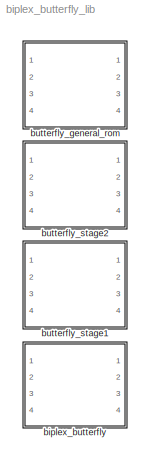
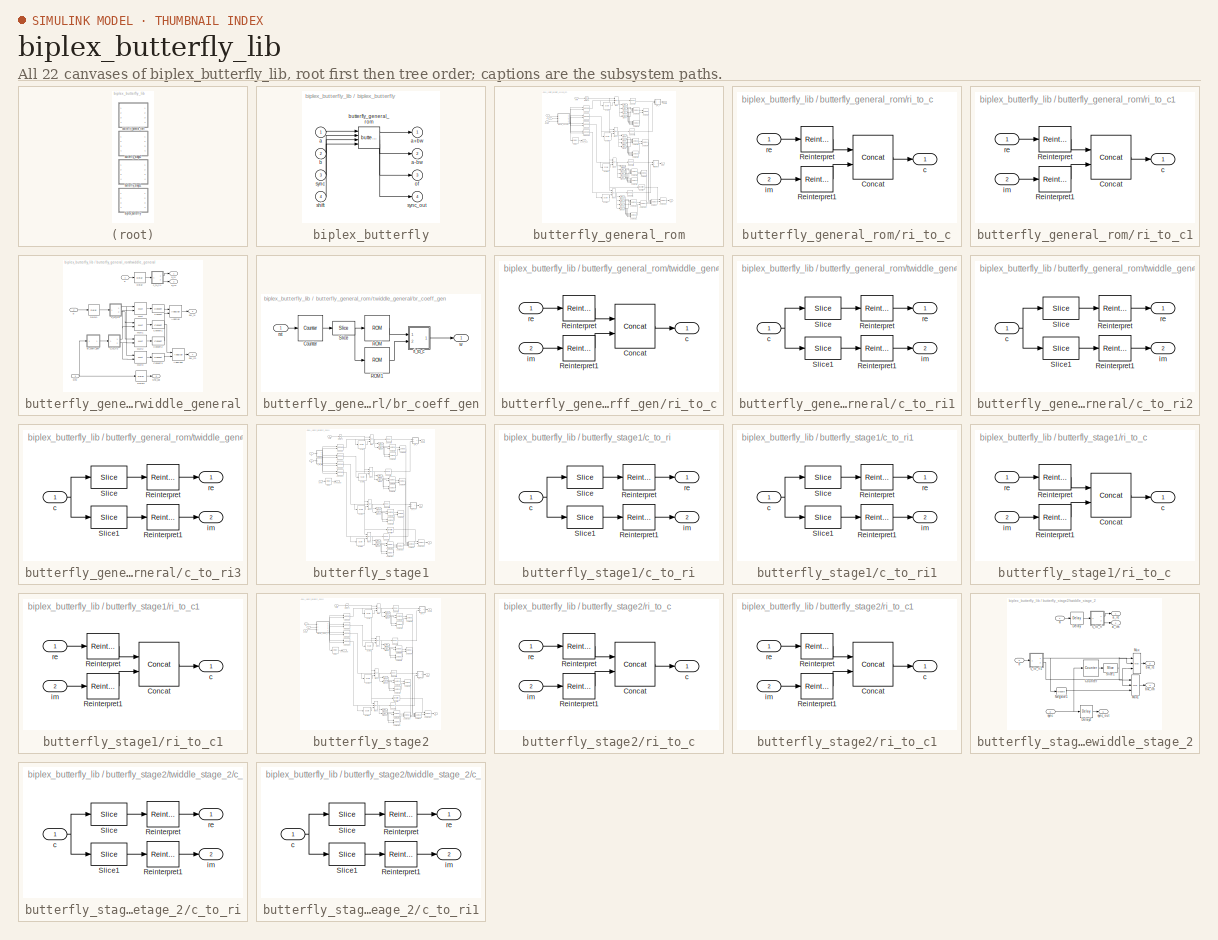
[diagram: thumbnail index - all 22 canvases of the model, root first then tree order]
MODEL biplex_butterfly_lib
KIND library
BLOCK [SubSystem] biplex_butterfly
  BlockChoice = butterfly_general_rom
  MemberBlocks = butterfly_general_rom,butterfly_stage1,butterfly_stage2
  MinAlgLoopOccurrences = off
  Ports = [4, 4]
  RTWSystemCode = Auto
  TemplateBlock = self
  TreatAsAtomicUnit = off
BLOCK [Inport] biplex_butterfly/a
  IconDisplay = Port number
  LatchInput = off
  Port = 1
BLOCK [Outport] biplex_butterfly/a+bw
  BusOutputAsStruct = off
  IconDisplay = Port number
BLOCK [Outport] biplex_butterfly/a-bw
  BusOutputAsStruct = off
  IconDisplay = Port number
  Port = 2
BLOCK [Inport] biplex_butterfly/b
  IconDisplay = Port number
  LatchInput = off
  Port = 2
BLOCK [Reference] biplex_butterfly/butterfly_general_rom  REF=biplex_butterfly_lib/butterfly_general_rom  (lib defined in mdl_6e92e3133389)
  BitWidth = 18
  Coeffs = 0:3
  FFTSize = 5
  Ports = [4, 4]
  ShowPortLabels = on
  SourceBlock = biplex_butterfly_lib/butterfly_general_rom
  SourceType = Unknown
  StepPeriod = 1
  add_latency = 2
  bram_latency = 2
  mult_latency = 3
  quantization = Truncate
  use_bram = off
BLOCK [Outport] biplex_butterfly/of
  BusOutputAsStruct = off
  IconDisplay = Port number
  Port = 3
BLOCK [Inport] biplex_butterfly/shift
  IconDisplay = Port number
  LatchInput = off
  Port = 4
BLOCK [Inport] biplex_butterfly/sync
  IconDisplay = Port number
  LatchInput = off
  Port = 3
BLOCK [Outport] biplex_butterfly/sync_out
  BusOutputAsStruct = off
  IconDisplay = Port number
  Port = 4
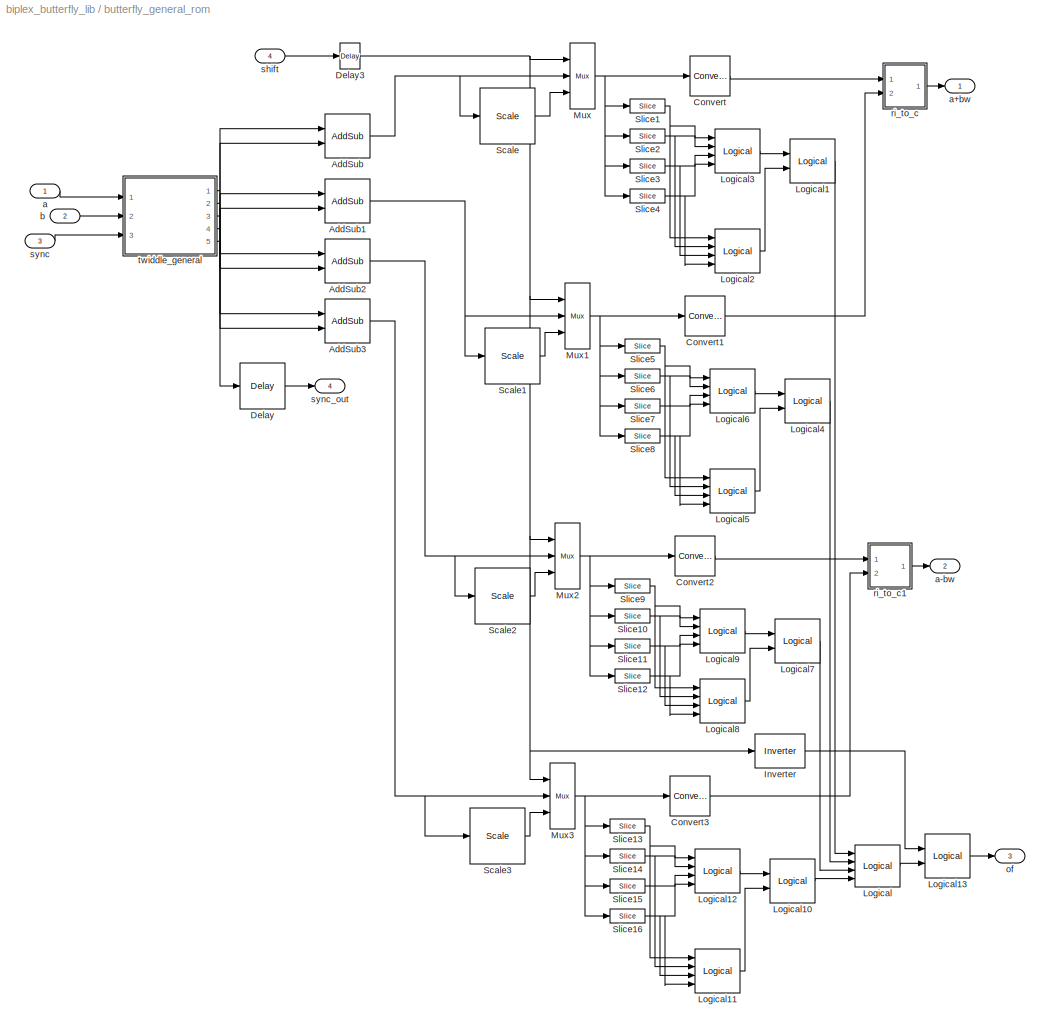
BLOCK [SubSystem] butterfly_general_rom
  MaskCallbackString = ||||||||
  MaskEnableString = on,on,on,on,on,on,on,on,on
  MaskIconFrame = on
  MaskIconOpaque = on
  MaskIconRotate = none
  MaskIconUnits = autoscale
  MaskInitialization = cursys = gcb;\ndisp(cursys);\n\n% Compute the complex, bit-reversed values of the twiddle factors\nbr_indices = bit_rev(Coeffs, FFTSize-1);\nbr_indices = -2*pi*1j*br_indices/2^FFTSize;\nActualCoeffs = exp(br_indices);\n\n% Propagate quantization behavior\nif ~strcmp(get_param([cursys,'/Convert'], 'quantization'), quantization),\n    set_param([cursys,'/Convert'], 'quantization', quantization);\n  ...<+209ch>
  MaskPromptString = Size of FFT: (2^?)|Coefficients: (0 to 2^(FFTSize-1)-1)|Coefficient Step Period: (2^?)|Output Bitwidth:|Mult Latency|Add Latency|BRAM Latency|Store Coefficients in BRAM|Quantization Behavior
  MaskSelfModifiable = on
  MaskStyleString = edit,edit,edit,edit,edit,edit,edit,checkbox,popup(Truncate|Round  (unbiased: +/- Inf)|Round  (unbiased: Even Values))
  MaskTabNameString = ,,,,,,,,
  MaskToolTipString = on,on,on,on,on,on,on,on,on
  MaskTunableValueString = on,on,on,on,on,on,on,on,on
  MaskValueString = 5|0:3|1|18|3|2|2|off|Truncate
  MaskVarAliasString = ,,,,,,,,
  MaskVariables = FFTSize=@1;Coeffs=@2;StepPeriod=@3;BitWidth=@4;mult_latency=@5;add_latency=@6;bram_latency=@7;use_bram=@8;quantization=&9;
  MaskVisibilityString = on,on,on,on,on,on,on,on,on
  MinAlgLoopOccurrences = off
  Ports = [4, 4]
  RTWSystemCode = Auto
  TreatAsAtomicUnit = off
BLOCK [Reference] butterfly_general_rom/AddSub  REF=xbsIndex_r3/AddSub
  Ports = [2, 1]
  SourceBlock = xbsIndex_r3/AddSub
  SourceType = Xilinx Adder/Subtractor
  arith_type = Unsigned
  bin_pt = 2
  dbl_ovrd = off
  en = off
  explicit_period = off
  gen_core = on
  latency = add_latency
  mode = Addition
  n_bits = 8
  overflow = Wrap
  period = 1
  pipeline = on
  precision = Full
  quantization = Truncate
  show_param = on
  use_carryin = off
  use_carryout = off
  use_core = on
  use_rpm = on
  xl_area = [0, 0, 0, 0, 0, 0, 0]
  xl_use_area = off
BLOCK [Reference] butterfly_general_rom/AddSub1  REF=xbsIndex_r3/AddSub
  Ports = [2, 1]
  SourceBlock = xbsIndex_r3/AddSub
  SourceType = Xilinx Adder/Subtractor
  arith_type = Unsigned
  bin_pt = 2
  dbl_ovrd = off
  en = off
  explicit_period = off
  gen_core = on
  latency = add_latency
  mode = Addition
  n_bits = 8
  overflow = Wrap
  period = 1
  pipeline = on
  precision = Full
  quantization = Truncate
  show_param = on
  use_carryin = off
  use_carryout = off
  use_core = on
  use_rpm = on
  xl_area = [0, 0, 0, 0, 0, 0, 0]
  xl_use_area = off
BLOCK [Reference] butterfly_general_rom/AddSub2  REF=xbsIndex_r3/AddSub
  Ports = [2, 1]
  SourceBlock = xbsIndex_r3/AddSub
  SourceType = Xilinx Adder/Subtractor
  arith_type = Unsigned
  bin_pt = 2
  dbl_ovrd = off
  en = off
  explicit_period = off
  gen_core = on
  latency = add_latency
  mode = Subtraction
  n_bits = 8
  overflow = Wrap
  period = 1
  pipeline = on
  precision = Full
  quantization = Truncate
  show_param = on
  use_carryin = off
  use_carryout = off
  use_core = on
  use_rpm = on
  xl_area = [0, 0, 0, 0, 0, 0, 0]
  xl_use_area = off
BLOCK [Reference] butterfly_general_rom/AddSub3  REF=xbsIndex_r3/AddSub
  Ports = [2, 1]
  SourceBlock = xbsIndex_r3/AddSub
  SourceType = Xilinx Adder/Subtractor
  arith_type = Unsigned
  bin_pt = 2
  dbl_ovrd = off
  en = off
  explicit_period = off
  gen_core = on
  latency = add_latency
  mode = Subtraction
  n_bits = 8
  overflow = Wrap
  period = 1
  pipeline = on
  precision = Full
  quantization = Truncate
  show_param = on
  use_carryin = off
  use_carryout = off
  use_core = on
  use_rpm = on
  xl_area = [0, 0, 0, 0, 0, 0, 0]
  xl_use_area = off
BLOCK [Reference] butterfly_general_rom/Convert  REF=xbsIndex_r3/Convert
  Ports = [1, 1]
  SourceBlock = xbsIndex_r3/Convert
  SourceType = Xilinx Converter Block
  arith_type = Signed  (2's comp)
  bin_pt = BitWidth-1
  dbl_ovrd = off
  explicit_period = off
  inserted_by_tool = off
  latency = add_latency
  n_bits = BitWidth
  overflow = Wrap
  period = 1
  pipeline = off
  quantization = Truncate
  show_param = off
  xl_area = [0, 0, 0, 0, 0, 0, 0]
  xl_use_area = off
BLOCK [Reference] butterfly_general_rom/Convert1  REF=xbsIndex_r3/Convert
  Ports = [1, 1]
  SourceBlock = xbsIndex_r3/Convert
  SourceType = Xilinx Converter Block
  arith_type = Signed  (2's comp)
  bin_pt = BitWidth-1
  dbl_ovrd = off
  explicit_period = off
  inserted_by_tool = off
  latency = add_latency
  n_bits = BitWidth
  overflow = Wrap
  period = 1
  pipeline = off
  quantization = Truncate
  show_param = off
  xl_area = [0, 0, 0, 0, 0, 0, 0]
  xl_use_area = off
BLOCK [Reference] butterfly_general_rom/Convert2  REF=xbsIndex_r3/Convert
  Ports = [1, 1]
  SourceBlock = xbsIndex_r3/Convert
  SourceType = Xilinx Converter Block
  arith_type = Signed  (2's comp)
  bin_pt = BitWidth-1
  dbl_ovrd = off
  explicit_period = off
  inserted_by_tool = off
  latency = add_latency
  n_bits = BitWidth
  overflow = Wrap
  period = 1
  pipeline = off
  quantization = Truncate
  show_param = off
  xl_area = [0, 0, 0, 0, 0, 0, 0]
  xl_use_area = off
BLOCK [Reference] butterfly_general_rom/Convert3  REF=xbsIndex_r3/Convert
  Ports = [1, 1]
  SourceBlock = xbsIndex_r3/Convert
  SourceType = Xilinx Converter Block
  arith_type = Signed  (2's comp)
  bin_pt = BitWidth-1
  dbl_ovrd = off
  explicit_period = off
  inserted_by_tool = off
  latency = add_latency
  n_bits = BitWidth
  overflow = Wrap
  period = 1
  pipeline = off
  quantization = Truncate
  show_param = off
  xl_area = [0, 0, 0, 0, 0, 0, 0]
  xl_use_area = off
BLOCK [Reference] butterfly_general_rom/Delay  REF=xbsIndex_r3/Delay
  Ports = [1, 1]
  SourceBlock = xbsIndex_r3/Delay
  SourceType = Xilinx Delay Block
  accept_only_valid = off
  dbl_ovrd = off
  en = off
  explicit_period = off
  init_zero = on
  latency = 2 * add_latency + 1
  period = 1
  reg_retiming = off
  show_param = off
  xl_area = [0, 0, 0, 0, 0, 0, 0]
  xl_use_area = off
BLOCK [Reference] butterfly_general_rom/Delay3  REF=xbsIndex_r3/Delay
  Ports = [1, 1]
  SourceBlock = xbsIndex_r3/Delay
  SourceType = Xilinx Delay Block
  accept_only_valid = off
  dbl_ovrd = off
  en = off
  explicit_period = off
  init_zero = on
  latency = 1
  period = 1
  reg_retiming = off
  show_param = off
  xl_area = [0, 0, 0, 0, 0, 0, 0]
  xl_use_area = off
BLOCK [Reference] butterfly_general_rom/Inverter  REF=xbsIndex_r3/Inverter
  Ports = [1, 1]
  SourceBlock = xbsIndex_r3/Inverter
  SourceType = Xilinx Inverter
  dbl_ovrd = off
  en = off
  explicit_period = off
  latency = 0
  period = 1
  show_param = off
  xl_area = [0, 0, 0, 0, 0, 0, 0]
  xl_use_area = off
BLOCK [Reference] butterfly_general_rom/Logical  REF=xbsIndex_r3/Logical
  Ports = [4, 1]
  SourceBlock = xbsIndex_r3/Logical
  SourceType = Xilinx Logical Block
  align_bp = on
  arith_type = Unsigned
  bin_pt = 2
  dbl_ovrd = off
  en = off
  explicit_period = off
  inputs = 4
  latency = 1
  logical_function = OR
  n_bits = 8
  period = 1
  precision = Full
  show_param = off
  xl_area = [0, 0, 0, 0, 0, 0, 0]
  xl_use_area = off
BLOCK [Reference] butterfly_general_rom/Logical1  REF=xbsIndex_r3/Logical
  Ports = [2, 1]
  SourceBlock = xbsIndex_r3/Logical
  SourceType = Xilinx Logical Block
  align_bp = off
  arith_type = Unsigned
  bin_pt = 2
  dbl_ovrd = off
  en = off
  explicit_period = off
  inputs = 2
  latency = 1
  logical_function = OR
  n_bits = 8
  period = 1
  precision = Full
  show_param = off
  xl_area = [0, 0, 0, 0, 0, 0, 0]
  xl_use_area = off
BLOCK [Reference] butterfly_general_rom/Logical10  REF=xbsIndex_r3/Logical
  Ports = [2, 1]
  SourceBlock = xbsIndex_r3/Logical
  SourceType = Xilinx Logical Block
  align_bp = off
  arith_type = Unsigned
  bin_pt = 2
  dbl_ovrd = off
  en = off
  explicit_period = off
  inputs = 2
  latency = 1
  logical_function = OR
  n_bits = 8
  period = 1
  precision = Full
  show_param = off
  xl_area = [0, 0, 0, 0, 0, 0, 0]
  xl_use_area = off
BLOCK [Reference] butterfly_general_rom/Logical11  REF=xbsIndex_r3/Logical
  Ports = [4, 1]
  SourceBlock = xbsIndex_r3/Logical
  SourceType = Xilinx Logical Block
  align_bp = off
  arith_type = Unsigned
  bin_pt = 2
  dbl_ovrd = off
  en = off
  explicit_period = off
  inputs = 4
  latency = 1
  logical_function = NOR
  n_bits = 8
  period = 1
  precision = Full
  show_param = off
  xl_area = [0, 0, 0, 0, 0, 0, 0]
  xl_use_area = off
BLOCK [Reference] butterfly_general_rom/Logical12  REF=xbsIndex_r3/Logical
  Ports = [4, 1]
  SourceBlock = xbsIndex_r3/Logical
  SourceType = Xilinx Logical Block
  align_bp = off
  arith_type = Unsigned
  bin_pt = 2
  dbl_ovrd = off
  en = off
  explicit_period = off
  inputs = 4
  latency = 1
  logical_function = AND
  n_bits = 8
  period = 1
  precision = Full
  show_param = off
  xl_area = [0, 0, 0, 0, 0, 0, 0]
  xl_use_area = off
BLOCK [Reference] butterfly_general_rom/Logical13  REF=xbsIndex_r3/Logical
  Ports = [2, 1]
  SourceBlock = xbsIndex_r3/Logical
  SourceType = Xilinx Logical Block
  align_bp = off
  arith_type = Unsigned
  bin_pt = 2
  dbl_ovrd = off
  en = off
  explicit_period = off
  inputs = 2
  latency = 1
  logical_function = AND
  n_bits = 8
  period = 1
  precision = Full
  show_param = off
  xl_area = [0, 0, 0, 0, 0, 0, 0]
  xl_use_area = off
BLOCK [Reference] butterfly_general_rom/Logical2  REF=xbsIndex_r3/Logical
  Ports = [4, 1]
  SourceBlock = xbsIndex_r3/Logical
  SourceType = Xilinx Logical Block
  align_bp = off
  arith_type = Unsigned
  bin_pt = 2
  dbl_ovrd = off
  en = off
  explicit_period = off
  inputs = 4
  latency = 1
  logical_function = NOR
  n_bits = 8
  period = 1
  precision = Full
  show_param = off
  xl_area = [0, 0, 0, 0, 0, 0, 0]
  xl_use_area = off
BLOCK [Reference] butterfly_general_rom/Logical3  REF=xbsIndex_r3/Logical
  Ports = [4, 1]
  SourceBlock = xbsIndex_r3/Logical
  SourceType = Xilinx Logical Block
  align_bp = off
  arith_type = Unsigned
  bin_pt = 2
  dbl_ovrd = off
  en = off
  explicit_period = off
  inputs = 4
  latency = 1
  logical_function = AND
  n_bits = 8
  period = 1
  precision = Full
  show_param = off
  xl_area = [0, 0, 0, 0, 0, 0, 0]
  xl_use_area = off
BLOCK [Reference] butterfly_general_rom/Logical4  REF=xbsIndex_r3/Logical
  Ports = [2, 1]
  SourceBlock = xbsIndex_r3/Logical
  SourceType = Xilinx Logical Block
  align_bp = off
  arith_type = Unsigned
  bin_pt = 2
  dbl_ovrd = off
  en = off
  explicit_period = off
  inputs = 2
  latency = 1
  logical_function = OR
  n_bits = 8
  period = 1
  precision = Full
  show_param = off
  xl_area = [0, 0, 0, 0, 0, 0, 0]
  xl_use_area = off
BLOCK [Reference] butterfly_general_rom/Logical5  REF=xbsIndex_r3/Logical
  Ports = [4, 1]
  SourceBlock = xbsIndex_r3/Logical
  SourceType = Xilinx Logical Block
  align_bp = off
  arith_type = Unsigned
  bin_pt = 2
  dbl_ovrd = off
  en = off
  explicit_period = off
  inputs = 4
  latency = 1
  logical_function = NOR
  n_bits = 8
  period = 1
  precision = Full
  show_param = off
  xl_area = [0, 0, 0, 0, 0, 0, 0]
  xl_use_area = off
BLOCK [Reference] butterfly_general_rom/Logical6  REF=xbsIndex_r3/Logical
  Ports = [4, 1]
  SourceBlock = xbsIndex_r3/Logical
  SourceType = Xilinx Logical Block
  align_bp = off
  arith_type = Unsigned
  bin_pt = 2
  dbl_ovrd = off
  en = off
  explicit_period = off
  inputs = 4
  latency = 1
  logical_function = AND
  n_bits = 8
  period = 1
  precision = Full
  show_param = off
  xl_area = [0, 0, 0, 0, 0, 0, 0]
  xl_use_area = off
BLOCK [Reference] butterfly_general_rom/Logical7  REF=xbsIndex_r3/Logical
  Ports = [2, 1]
  SourceBlock = xbsIndex_r3/Logical
  SourceType = Xilinx Logical Block
  align_bp = off
  arith_type = Unsigned
  bin_pt = 2
  dbl_ovrd = off
  en = off
  explicit_period = off
  inputs = 2
  latency = 1
  logical_function = OR
  n_bits = 8
  period = 1
  precision = Full
  show_param = off
  xl_area = [0, 0, 0, 0, 0, 0, 0]
  xl_use_area = off
BLOCK [Reference] butterfly_general_rom/Logical8  REF=xbsIndex_r3/Logical
  Ports = [4, 1]
  SourceBlock = xbsIndex_r3/Logical
  SourceType = Xilinx Logical Block
  align_bp = off
  arith_type = Unsigned
  bin_pt = 2
  dbl_ovrd = off
  en = off
  explicit_period = off
  inputs = 4
  latency = 1
  logical_function = NOR
  n_bits = 8
  period = 1
  precision = Full
  show_param = off
  xl_area = [0, 0, 0, 0, 0, 0, 0]
  xl_use_area = off
BLOCK [Reference] butterfly_general_rom/Logical9  REF=xbsIndex_r3/Logical
  Ports = [4, 1]
  SourceBlock = xbsIndex_r3/Logical
  SourceType = Xilinx Logical Block
  align_bp = off
  arith_type = Unsigned
  bin_pt = 2
  dbl_ovrd = off
  en = off
  explicit_period = off
  inputs = 4
  latency = 1
  logical_function = AND
  n_bits = 8
  period = 1
  precision = Full
  show_param = off
  xl_area = [0, 0, 0, 0, 0, 0, 0]
  xl_use_area = off
BLOCK [Reference] butterfly_general_rom/Mux  REF=xbsIndex_r3/Mux
  Ports = [3, 1]
  SourceBlock = xbsIndex_r3/Mux
  SourceType = Xilinx Multiplexer Block
  arith_type = Signed  (2's comp)
  bin_pt = 2
  dbl_ovrd = off
  en = off
  explicit_period = off
  gen_core = off
  inputs = 2
  latency = 1
  mux_type = off
  n_bits = 8
  overflow = Wrap
  period = 1
  precision = Full
  quantization = Truncate
  show_param = off
  use_rpm = off
  xl_area = [0, 0, 0, 0, 0, 0, 0]
  xl_use_area = off
BLOCK [Reference] butterfly_general_rom/Mux1  REF=xbsIndex_r3/Mux
  Ports = [3, 1]
  SourceBlock = xbsIndex_r3/Mux
  SourceType = Xilinx Multiplexer Block
  arith_type = Signed  (2's comp)
  bin_pt = 2
  dbl_ovrd = off
  en = off
  explicit_period = off
  gen_core = off
  inputs = 2
  latency = 1
  mux_type = off
  n_bits = 8
  overflow = Wrap
  period = 1
  precision = Full
  quantization = Truncate
  show_param = off
  use_rpm = off
  xl_area = [0, 0, 0, 0, 0, 0, 0]
  xl_use_area = off
BLOCK [Reference] butterfly_general_rom/Mux2  REF=xbsIndex_r3/Mux
  Ports = [3, 1]
  SourceBlock = xbsIndex_r3/Mux
  SourceType = Xilinx Multiplexer Block
  arith_type = Signed  (2's comp)
  bin_pt = 2
  dbl_ovrd = off
  en = off
  explicit_period = off
  gen_core = off
  inputs = 2
  latency = 1
  mux_type = off
  n_bits = 8
  overflow = Wrap
  period = 1
  precision = Full
  quantization = Truncate
  show_param = off
  use_rpm = off
  xl_area = [0, 0, 0, 0, 0, 0, 0]
  xl_use_area = off
BLOCK [Reference] butterfly_general_rom/Mux3  REF=xbsIndex_r3/Mux
  Ports = [3, 1]
  SourceBlock = xbsIndex_r3/Mux
  SourceType = Xilinx Multiplexer Block
  arith_type = Signed  (2's comp)
  bin_pt = 2
  dbl_ovrd = off
  en = off
  explicit_period = off
  gen_core = off
  inputs = 2
  latency = 1
  mux_type = off
  n_bits = 8
  overflow = Wrap
  period = 1
  precision = Full
  quantization = Truncate
  show_param = off
  use_rpm = off
  xl_area = [0, 0, 0, 0, 0, 0, 0]
  xl_use_area = off
BLOCK [Reference] butterfly_general_rom/Scale  REF=xbsIndex_r3/Scale
  Ports = [1, 1]
  SourceBlock = xbsIndex_r3/Scale
  SourceType = Xilinx Scaling Block
  dbl_ovrd = off
  explicit_period = off
  period = 1
  scale_factor = -1
BLOCK [Reference] butterfly_general_rom/Scale1  REF=xbsIndex_r3/Scale
  Ports = [1, 1]
  SourceBlock = xbsIndex_r3/Scale
  SourceType = Xilinx Scaling Block
  dbl_ovrd = off
  explicit_period = off
  period = 1
  scale_factor = -1
BLOCK [Reference] butterfly_general_rom/Scale2  REF=xbsIndex_r3/Scale
  Ports = [1, 1]
  SourceBlock = xbsIndex_r3/Scale
  SourceType = Xilinx Scaling Block
  dbl_ovrd = off
  explicit_period = off
  period = 1
  scale_factor = -1
BLOCK [Reference] butterfly_general_rom/Scale3  REF=xbsIndex_r3/Scale
  Ports = [1, 1]
  SourceBlock = xbsIndex_r3/Scale
  SourceType = Xilinx Scaling Block
  dbl_ovrd = off
  explicit_period = off
  period = 1
  scale_factor = -1
BLOCK [Reference] butterfly_general_rom/Slice1  REF=xbsIndex_r3/Slice
  Ports = [1, 1]
  SourceBlock = xbsIndex_r3/Slice
  SourceType = Xilinx Slice Block
  base0 = LSB of Input
  base1 = MSB of Input
  bit0 = 0
  bit1 = 0
  boolean_output = on
  dbl_ovrd = off
  explicit_period = off
  mode = Upper Bit Location + Width
  nbits = 1
  period = 1
BLOCK [Reference] butterfly_general_rom/Slice10  REF=xbsIndex_r3/Slice
  Ports = [1, 1]
  SourceBlock = xbsIndex_r3/Slice
  SourceType = Xilinx Slice Block
  base0 = LSB of Input
  base1 = MSB of Input
  bit0 = 0
  bit1 = -1
  boolean_output = on
  dbl_ovrd = off
  explicit_period = off
  mode = Upper Bit Location + Width
  nbits = 1
  period = 1
BLOCK [Reference] butterfly_general_rom/Slice11  REF=xbsIndex_r3/Slice
  Ports = [1, 1]
  SourceBlock = xbsIndex_r3/Slice
  SourceType = Xilinx Slice Block
  base0 = LSB of Input
  base1 = MSB of Input
  bit0 = 0
  bit1 = -2
  boolean_output = on
  dbl_ovrd = off
  explicit_period = off
  mode = Upper Bit Location + Width
  nbits = 1
  period = 1
BLOCK [Reference] butterfly_general_rom/Slice12  REF=xbsIndex_r3/Slice
  Ports = [1, 1]
  SourceBlock = xbsIndex_r3/Slice
  SourceType = Xilinx Slice Block
  base0 = LSB of Input
  base1 = MSB of Input
  bit0 = 0
  bit1 = -3
  boolean_output = on
  dbl_ovrd = off
  explicit_period = off
  mode = Upper Bit Location + Width
  nbits = 1
  period = 1
BLOCK [Reference] butterfly_general_rom/Slice13  REF=xbsIndex_r3/Slice
  Ports = [1, 1]
  SourceBlock = xbsIndex_r3/Slice
  SourceType = Xilinx Slice Block
  base0 = LSB of Input
  base1 = MSB of Input
  bit0 = 0
  bit1 = 0
  boolean_output = on
  dbl_ovrd = off
  explicit_period = off
  mode = Upper Bit Location + Width
  nbits = 1
  period = 1
BLOCK [Reference] butterfly_general_rom/Slice14  REF=xbsIndex_r3/Slice
  Ports = [1, 1]
  SourceBlock = xbsIndex_r3/Slice
  SourceType = Xilinx Slice Block
  base0 = LSB of Input
  base1 = MSB of Input
  bit0 = 0
  bit1 = -1
  boolean_output = on
  dbl_ovrd = off
  explicit_period = off
  mode = Upper Bit Location + Width
  nbits = 1
  period = 1
BLOCK [Reference] butterfly_general_rom/Slice15  REF=xbsIndex_r3/Slice
  Ports = [1, 1]
  SourceBlock = xbsIndex_r3/Slice
  SourceType = Xilinx Slice Block
  base0 = LSB of Input
  base1 = MSB of Input
  bit0 = 0
  bit1 = -2
  boolean_output = on
  dbl_ovrd = off
  explicit_period = off
  mode = Upper Bit Location + Width
  nbits = 1
  period = 1
BLOCK [Reference] butterfly_general_rom/Slice16  REF=xbsIndex_r3/Slice
  Ports = [1, 1]
  SourceBlock = xbsIndex_r3/Slice
  SourceType = Xilinx Slice Block
  base0 = LSB of Input
  base1 = MSB of Input
  bit0 = 0
  bit1 = -3
  boolean_output = on
  dbl_ovrd = off
  explicit_period = off
  mode = Upper Bit Location + Width
  nbits = 1
  period = 1
BLOCK [Reference] butterfly_general_rom/Slice2  REF=xbsIndex_r3/Slice
  Ports = [1, 1]
  SourceBlock = xbsIndex_r3/Slice
  SourceType = Xilinx Slice Block
  base0 = LSB of Input
  base1 = MSB of Input
  bit0 = 0
  bit1 = -1
  boolean_output = on
  dbl_ovrd = off
  explicit_period = off
  mode = Upper Bit Location + Width
  nbits = 1
  period = 1
BLOCK [Reference] butterfly_general_rom/Slice3  REF=xbsIndex_r3/Slice
  Ports = [1, 1]
  SourceBlock = xbsIndex_r3/Slice
  SourceType = Xilinx Slice Block
  base0 = LSB of Input
  base1 = MSB of Input
  bit0 = 0
  bit1 = -2
  boolean_output = on
  dbl_ovrd = off
  explicit_period = off
  mode = Upper Bit Location + Width
  nbits = 1
  period = 1
BLOCK [Reference] butterfly_general_rom/Slice4  REF=xbsIndex_r3/Slice
  Ports = [1, 1]
  SourceBlock = xbsIndex_r3/Slice
  SourceType = Xilinx Slice Block
  base0 = LSB of Input
  base1 = MSB of Input
  bit0 = 0
  bit1 = -3
  boolean_output = on
  dbl_ovrd = off
  explicit_period = off
  mode = Upper Bit Location + Width
  nbits = 1
  period = 1
BLOCK [Reference] butterfly_general_rom/Slice5  REF=xbsIndex_r3/Slice
  Ports = [1, 1]
  SourceBlock = xbsIndex_r3/Slice
  SourceType = Xilinx Slice Block
  base0 = LSB of Input
  base1 = MSB of Input
  bit0 = 0
  bit1 = 0
  boolean_output = on
  dbl_ovrd = off
  explicit_period = off
  mode = Upper Bit Location + Width
  nbits = 1
  period = 1
BLOCK [Reference] butterfly_general_rom/Slice6  REF=xbsIndex_r3/Slice
  Ports = [1, 1]
  SourceBlock = xbsIndex_r3/Slice
  SourceType = Xilinx Slice Block
  base0 = LSB of Input
  base1 = MSB of Input
  bit0 = 0
  bit1 = -1
  boolean_output = on
  dbl_ovrd = off
  explicit_period = off
  mode = Upper Bit Location + Width
  nbits = 1
  period = 1
BLOCK [Reference] butterfly_general_rom/Slice7  REF=xbsIndex_r3/Slice
  Ports = [1, 1]
  SourceBlock = xbsIndex_r3/Slice
  SourceType = Xilinx Slice Block
  base0 = LSB of Input
  base1 = MSB of Input
  bit0 = 0
  bit1 = -2
  boolean_output = on
  dbl_ovrd = off
  explicit_period = off
  mode = Upper Bit Location + Width
  nbits = 1
  period = 1
BLOCK [Reference] butterfly_general_rom/Slice8  REF=xbsIndex_r3/Slice
  Ports = [1, 1]
  SourceBlock = xbsIndex_r3/Slice
  SourceType = Xilinx Slice Block
  base0 = LSB of Input
  base1 = MSB of Input
  bit0 = 0
  bit1 = -3
  boolean_output = on
  dbl_ovrd = off
  explicit_period = off
  mode = Upper Bit Location + Width
  nbits = 1
  period = 1
BLOCK [Reference] butterfly_general_rom/Slice9  REF=xbsIndex_r3/Slice
  Ports = [1, 1]
  SourceBlock = xbsIndex_r3/Slice
  SourceType = Xilinx Slice Block
  base0 = LSB of Input
  base1 = MSB of Input
  bit0 = 0
  bit1 = 0
  boolean_output = on
  dbl_ovrd = off
  explicit_period = off
  mode = Upper Bit Location + Width
  nbits = 1
  period = 1
BLOCK [Inport] butterfly_general_rom/a
  IconDisplay = Port number
  LatchInput = off
  Port = 1
BLOCK [Outport] butterfly_general_rom/a+bw
  BusOutputAsStruct = off
  IconDisplay = Port number
BLOCK [Outport] butterfly_general_rom/a-bw
  BusOutputAsStruct = off
  IconDisplay = Port number
  Port = 2
BLOCK [Inport] butterfly_general_rom/b
  IconDisplay = Port number
  LatchInput = off
  Port = 2
BLOCK [Outport] butterfly_general_rom/of
  BusOutputAsStruct = off
  IconDisplay = Port number
  Port = 3
BLOCK [SubSystem] butterfly_general_rom/ri_to_c
  MaskEnableString = off
  MaskIconFrame = on
  MaskIconOpaque = on
  MaskIconRotate = none
  MaskIconUnits = autoscale
  MaskPromptString = Mask Parameter 1:
  MaskSelfModifiable = on
  MaskStyleString = edit
  MaskToolTipString = on
  MaskTunableValueString = on
  MaskValueString = 0
  MaskVariables = test=@1;
  MaskVisibilityString = off
  MinAlgLoopOccurrences = off
  Ports = [2, 1]
  RTWSystemCode = Auto
  TreatAsAtomicUnit = off
BLOCK [Reference] butterfly_general_rom/ri_to_c/Concat  REF=xbsIndex_r3/Concat
  Ports = [2, 1]
  SourceBlock = xbsIndex_r3/Concat
  SourceType = Xilinx Bus Concatenator
  dbl_ovrd = off
  explicit_period = off
  num_inputs = 2
  period = 1
BLOCK [Reference] butterfly_general_rom/ri_to_c/Reinterpret  REF=xbsIndex_r3/Reinterpret
  Ports = [1, 1]
  SourceBlock = xbsIndex_r3/Reinterpret
  SourceType = Xilinx Type Reinterpreting Block
  arith_type = Unsigned
  bin_pt = 0
  force_arith_type = on
  force_bin_pt = on
  force_valid = on
BLOCK [Reference] butterfly_general_rom/ri_to_c/Reinterpret1  REF=xbsIndex_r3/Reinterpret
  Ports = [1, 1]
  SourceBlock = xbsIndex_r3/Reinterpret
  SourceType = Xilinx Type Reinterpreting Block
  arith_type = Unsigned
  bin_pt = 0
  force_arith_type = on
  force_bin_pt = on
  force_valid = on
BLOCK [Outport] butterfly_general_rom/ri_to_c/c
  BusOutputAsStruct = off
  IconDisplay = Port number
BLOCK [Inport] butterfly_general_rom/ri_to_c/im
  IconDisplay = Port number
  LatchInput = off
  Port = 2
BLOCK [Inport] butterfly_general_rom/ri_to_c/re
  IconDisplay = Port number
  LatchInput = off
  Port = 1
BLOCK [SubSystem] butterfly_general_rom/ri_to_c1
  MaskEnableString = off
  MaskIconFrame = on
  MaskIconOpaque = on
  MaskIconRotate = none
  MaskIconUnits = autoscale
  MaskPromptString = Mask Parameter 1:
  MaskSelfModifiable = on
  MaskStyleString = edit
  MaskToolTipString = on
  MaskTunableValueString = on
  MaskValueString = 0
  MaskVariables = test=@1;
  MaskVisibilityString = off
  MinAlgLoopOccurrences = off
  Ports = [2, 1]
  RTWSystemCode = Auto
  TreatAsAtomicUnit = off
BLOCK [Reference] butterfly_general_rom/ri_to_c1/Concat  REF=xbsIndex_r3/Concat
  Ports = [2, 1]
  SourceBlock = xbsIndex_r3/Concat
  SourceType = Xilinx Bus Concatenator
  dbl_ovrd = off
  explicit_period = off
  num_inputs = 2
  period = 1
BLOCK [Reference] butterfly_general_rom/ri_to_c1/Reinterpret  REF=xbsIndex_r3/Reinterpret
  Ports = [1, 1]
  SourceBlock = xbsIndex_r3/Reinterpret
  SourceType = Xilinx Type Reinterpreting Block
  arith_type = Unsigned
  bin_pt = 0
  force_arith_type = on
  force_bin_pt = on
  force_valid = on
BLOCK [Reference] butterfly_general_rom/ri_to_c1/Reinterpret1  REF=xbsIndex_r3/Reinterpret
  Ports = [1, 1]
  SourceBlock = xbsIndex_r3/Reinterpret
  SourceType = Xilinx Type Reinterpreting Block
  arith_type = Unsigned
  bin_pt = 0
  force_arith_type = on
  force_bin_pt = on
  force_valid = on
BLOCK [Outport] butterfly_general_rom/ri_to_c1/c
  BusOutputAsStruct = off
  IconDisplay = Port number
BLOCK [Inport] butterfly_general_rom/ri_to_c1/im
  IconDisplay = Port number
  LatchInput = off
  Port = 2
BLOCK [Inport] butterfly_general_rom/ri_to_c1/re
  IconDisplay = Port number
  LatchInput = off
  Port = 1
BLOCK [Inport] butterfly_general_rom/shift
  IconDisplay = Port number
  LatchInput = off
  Port = 4
BLOCK [Inport] butterfly_general_rom/sync
  IconDisplay = Port number
  LatchInput = off
  Port = 3
BLOCK [Outport] butterfly_general_rom/sync_out
  BusOutputAsStruct = off
  IconDisplay = Port number
  Port = 4
BLOCK [SubSystem] butterfly_general_rom/twiddle_general
  MinAlgLoopOccurrences = off
  Ports = [3, 5]
  RTWSystemCode = Auto
  TreatAsAtomicUnit = off
BLOCK [Reference] butterfly_general_rom/twiddle_general/AddSub  REF=xbsIndex_r3/AddSub
  Ports = [2, 1]
  SourceBlock = xbsIndex_r3/AddSub
  SourceType = Xilinx Adder/Subtractor
  arith_type = Signed  (2's comp)
  bin_pt = BitWidth - 1
  dbl_ovrd = off
  en = off
  explicit_period = off
  gen_core = on
  latency = add_latency
  mode = Subtraction
  n_bits = BitWidth
  overflow = Wrap
  period = 1
  pipeline = on
  precision = Full
  quantization = Round  (unbiased: +/- Inf)
  show_param = on
  use_carryin = off
  use_carryout = off
  use_core = on
  use_rpm = on
  xl_area = [0, 0, 0, 0, 0, 0, 0]
  xl_use_area = off
BLOCK [Reference] butterfly_general_rom/twiddle_general/AddSub1  REF=xbsIndex_r3/AddSub
  Ports = [2, 1]
  SourceBlock = xbsIndex_r3/AddSub
  SourceType = Xilinx Adder/Subtractor
  arith_type = Signed  (2's comp)
  bin_pt = BitWidth-1
  dbl_ovrd = off
  en = off
  explicit_period = off
  gen_core = on
  latency = add_latency
  mode = Addition
  n_bits = BitWidth
  overflow = Wrap
  period = 1
  pipeline = on
  precision = Full
  quantization = Round  (unbiased: +/- Inf)
  show_param = on
  use_carryin = off
  use_carryout = off
  use_core = on
  use_rpm = on
  xl_area = [0, 0, 0, 0, 0, 0, 0]
  xl_use_area = off
BLOCK [Reference] butterfly_general_rom/twiddle_general/Convert  REF=xbsIndex_r3/Convert
  Ports = [1, 1]
  SourceBlock = xbsIndex_r3/Convert
  SourceType = Xilinx Converter Block
  arith_type = Signed  (2's comp)
  bin_pt = BitWidth
  dbl_ovrd = off
  explicit_period = off
  inserted_by_tool = off
  latency = 0
  n_bits = BitWidth + 2
  overflow = Wrap
  period = 1
  pipeline = off
  quantization = Truncate
  show_param = off
  xl_area = [0, 0, 0, 0, 0, 0, 0]
  xl_use_area = off
BLOCK [Reference] butterfly_general_rom/twiddle_general/Convert1  REF=xbsIndex_r3/Convert
  Ports = [1, 1]
  SourceBlock = xbsIndex_r3/Convert
  SourceType = Xilinx Converter Block
  arith_type = Signed  (2's comp)
  bin_pt = BitWidth
  dbl_ovrd = off
  explicit_period = off
  inserted_by_tool = off
  latency = 0
  n_bits = BitWidth + 2
  overflow = Wrap
  period = 1
  pipeline = off
  quantization = Truncate
  show_param = off
  xl_area = [0, 0, 0, 0, 0, 0, 0]
  xl_use_area = off
BLOCK [Reference] butterfly_general_rom/twiddle_general/Convert2  REF=xbsIndex_r3/Convert
  Ports = [1, 1]
  SourceBlock = xbsIndex_r3/Convert
  SourceType = Xilinx Converter Block
  arith_type = Signed  (2's comp)
  bin_pt = BitWidth
  dbl_ovrd = off
  explicit_period = off
  inserted_by_tool = off
  latency = 0
  n_bits = BitWidth + 2
  overflow = Wrap
  period = 1
  pipeline = off
  quantization = Truncate
  show_param = off
  xl_area = [0, 0, 0, 0, 0, 0, 0]
  xl_use_area = off
BLOCK [Reference] butterfly_general_rom/twiddle_general/Convert3  REF=xbsIndex_r3/Convert
  Ports = [1, 1]
  SourceBlock = xbsIndex_r3/Convert
  SourceType = Xilinx Converter Block
  arith_type = Signed  (2's comp)
  bin_pt = BitWidth
  dbl_ovrd = off
  explicit_period = off
  inserted_by_tool = off
  latency = 0
  n_bits = BitWidth + 2
  overflow = Wrap
  period = 1
  pipeline = off
  quantization = Truncate
  show_param = off
  xl_area = [0, 0, 0, 0, 0, 0, 0]
  xl_use_area = off
BLOCK [Reference] butterfly_general_rom/twiddle_general/Delay  REF=xbsIndex_r3/Delay
  Ports = [1, 1]
  SourceBlock = xbsIndex_r3/Delay
  SourceType = Xilinx Delay Block
  accept_only_valid = off
  dbl_ovrd = off
  en = off
  explicit_period = off
  init_zero = on
  latency = mult_latency + add_latency + bram_latency
  period = 1
  reg_retiming = off
  show_param = off
  xl_area = [0, 0, 0, 0, 0, 0, 0]
  xl_use_area = off
BLOCK [Reference] butterfly_general_rom/twiddle_general/Delay1  REF=xbsIndex_r3/Delay
  Ports = [1, 1]
  SourceBlock = xbsIndex_r3/Delay
  SourceType = Xilinx Delay Block
  accept_only_valid = off
  dbl_ovrd = off
  en = off
  explicit_period = off
  init_zero = on
  latency = bram_latency
  period = 1
  reg_retiming = off
  show_param = off
  xl_area = [0, 0, 0, 0, 0, 0, 0]
  xl_use_area = off
BLOCK [Reference] butterfly_general_rom/twiddle_general/Delay2  REF=xbsIndex_r3/Delay
  Ports = [1, 1]
  SourceBlock = xbsIndex_r3/Delay
  SourceType = Xilinx Delay Block
  accept_only_valid = off
  dbl_ovrd = off
  en = off
  explicit_period = off
  init_zero = on
  latency = mult_latency + add_latency + bram_latency
  period = 1
  reg_retiming = off
  show_param = off
  xl_area = [0, 0, 0, 0, 0, 0, 0]
  xl_use_area = off
BLOCK [Reference] butterfly_general_rom/twiddle_general/Mult  REF=xbsIndex_r3/Mult
  Ports = [2, 1]
  SourceBlock = xbsIndex_r3/Mult
  SourceType = Xilinx Multiplier
  arith_type = Signed  (2's comp)
  bin_pt = BitWidth-1
  dbl_ovrd = off
  en = off
  explicit_period = off
  gen_core = on
  latency = mult_latency
  mult_type = Parallel
  n_bits = BitWidth
  overflow = Wrap
  oversample = 2
  period = 1
  pipeline = on
  placement_style = Rectangular Shape
  precision = Full
  quantization = Round  (unbiased: +/- Inf)
  show_param = on
  use_embedded = on
  use_rpm = on
  xl_area = [0, 0, 0, 0, 0, 0, 0]
  xl_use_area = off
BLOCK [Reference] butterfly_general_rom/twiddle_general/Mult1  REF=xbsIndex_r3/Mult
  Ports = [2, 1]
  SourceBlock = xbsIndex_r3/Mult
  SourceType = Xilinx Multiplier
  arith_type = Signed  (2's comp)
  bin_pt = BitWidth-1
  dbl_ovrd = off
  en = off
  explicit_period = off
  gen_core = on
  latency = mult_latency
  mult_type = Parallel
  n_bits = BitWidth
  overflow = Wrap
  oversample = 2
  period = 1
  pipeline = on
  placement_style = Rectangular Shape
  precision = Full
  quantization = Round  (unbiased: +/- Inf)
  show_param = on
  use_embedded = on
  use_rpm = on
  xl_area = [0, 0, 0, 0, 0, 0, 0]
  xl_use_area = off
BLOCK [Reference] butterfly_general_rom/twiddle_general/Mult2  REF=xbsIndex_r3/Mult
  Ports = [2, 1]
  SourceBlock = xbsIndex_r3/Mult
  SourceType = Xilinx Multiplier
  arith_type = Signed  (2's comp)
  bin_pt = BitWidth-1
  dbl_ovrd = off
  en = off
  explicit_period = off
  gen_core = on
  latency = mult_latency
  mult_type = Parallel
  n_bits = BitWidth
  overflow = Wrap
  oversample = 2
  period = 1
  pipeline = on
  placement_style = Rectangular Shape
  precision = Full
  quantization = Round  (unbiased: +/- Inf)
  show_param = on
  use_embedded = on
  use_rpm = on
  xl_area = [0, 0, 0, 0, 0, 0, 0]
  xl_use_area = off
BLOCK [Reference] butterfly_general_rom/twiddle_general/Mult3  REF=xbsIndex_r3/Mult
  Ports = [2, 1]
  SourceBlock = xbsIndex_r3/Mult
  SourceType = Xilinx Multiplier
  arith_type = Signed  (2's comp)
  bin_pt = BitWidth-1
  dbl_ovrd = off
  en = off
  explicit_period = off
  gen_core = on
  latency = mult_latency
  mult_type = Parallel
  n_bits = BitWidth
  overflow = Wrap
  oversample = 2
  period = 1
  pipeline = on
  placement_style = Rectangular Shape
  precision = Full
  quantization = Round  (unbiased: +/- Inf)
  show_param = on
  use_embedded = on
  use_rpm = on
  xl_area = [0, 0, 0, 0, 0, 0, 0]
  xl_use_area = off
BLOCK [Inport] butterfly_general_rom/twiddle_general/a
  IconDisplay = Port number
  LatchInput = off
  Port = 1
BLOCK [Outport] butterfly_general_rom/twiddle_general/a_im
  BusOutputAsStruct = off
  IconDisplay = Port number
  Port = 2
BLOCK [Outport] butterfly_general_rom/twiddle_general/a_re
  BusOutputAsStruct = off
  IconDisplay = Port number
BLOCK [Inport] butterfly_general_rom/twiddle_general/b
  IconDisplay = Port number
  LatchInput = off
  Port = 2
BLOCK [SubSystem] butterfly_general_rom/twiddle_general/br_coeff_gen
  MinAlgLoopOccurrences = off
  Ports = [1, 1]
  RTWSystemCode = Auto
  TreatAsAtomicUnit = off
BLOCK [Reference] butterfly_general_rom/twiddle_general/br_coeff_gen/Counter  REF=xbsIndex_r3/Counter
  Ports = [1, 1]
  SourceBlock = xbsIndex_r3/Counter
  SourceType = Xilinx Counter Block
  arith_type = Unsigned
  bin_pt = 0
  cnt_by_val = 1
  cnt_to = Inf
  cnt_type = Free Running
  dbl_ovrd = off
  en = off
  explicit_period = off
  gen_core = off
  load_pin = off
  n_bits = log2(length(ActualCoeffs)) + StepPeriod
  operation = Up
  period = 1
  rst = on
  show_param = off
  start_count = 0
  use_rpm = on
  xl_area = [0, 0, 0, 0, 0, 0, 0]
  xl_use_area = off
BLOCK [Reference] butterfly_general_rom/twiddle_general/br_coeff_gen/ROM  REF=xbsIndex_r3/ROM
  Ports = [1, 1]
  SourceBlock = xbsIndex_r3/ROM
  SourceType = Xilinx Single Port Read-Only Memory
  arith_type = Signed  (2's comp)
  bin_pt = BitWidth-1
  dbl_ovrd = off
  depth = length(ActualCoeffs)
  distributed_mem = on
  en = off
  explicit_period = off
  gen_core = off
  initVector = real(ActualCoeffs)
  init_reg = 0
  init_zero = on
  latency = bram_latency
  n_bits = BitWidth
  period = 1
  rst = off
  show_param = on
  use_rpm = off
  xl_area = [0, 0, 0, 0, 0, 0, 0]
  xl_use_area = off
BLOCK [Reference] butterfly_general_rom/twiddle_general/br_coeff_gen/ROM1  REF=xbsIndex_r3/ROM
  Ports = [1, 1]
  SourceBlock = xbsIndex_r3/ROM
  SourceType = Xilinx Single Port Read-Only Memory
  arith_type = Signed  (2's comp)
  bin_pt = BitWidth-1
  dbl_ovrd = off
  depth = length(ActualCoeffs)
  distributed_mem = on
  en = off
  explicit_period = off
  gen_core = off
  initVector = imag(ActualCoeffs)
  init_reg = 0
  init_zero = on
  latency = bram_latency
  n_bits = BitWidth
  period = 1
  rst = off
  show_param = on
  use_rpm = off
  xl_area = [0, 0, 0, 0, 0, 0, 0]
  xl_use_area = off
BLOCK [Reference] butterfly_general_rom/twiddle_general/br_coeff_gen/Slice  REF=xbsIndex_r3/Slice
  Ports = [1, 1]
  SourceBlock = xbsIndex_r3/Slice
  SourceType = Xilinx Slice Block
  base0 = LSB of Input
  base1 = MSB of Input
  bit0 = 0
  bit1 = 0
  boolean_output = off
  dbl_ovrd = off
  explicit_period = off
  mode = Upper Bit Location + Width
  nbits = log2(length(ActualCoeffs))
  period = 1
BLOCK [SubSystem] butterfly_general_rom/twiddle_general/br_coeff_gen/ri_to_c
  MinAlgLoopOccurrences = off
  Ports = [2, 1]
  RTWSystemCode = Auto
  TreatAsAtomicUnit = off
BLOCK [Reference] butterfly_general_rom/twiddle_general/br_coeff_gen/ri_to_c/Concat  REF=xbsIndex_r3/Concat
  Ports = [2, 1]
  SourceBlock = xbsIndex_r3/Concat
  SourceType = Xilinx Bus Concatenator
  dbl_ovrd = off
  explicit_period = off
  num_inputs = 2
  period = 1
BLOCK [Reference] butterfly_general_rom/twiddle_general/br_coeff_gen/ri_to_c/Reinterpret  REF=xbsIndex_r3/Reinterpret
  Ports = [1, 1]
  SourceBlock = xbsIndex_r3/Reinterpret
  SourceType = Xilinx Type Reinterpreting Block
  arith_type = Unsigned
  bin_pt = 0
  force_arith_type = on
  force_bin_pt = on
  force_valid = on
BLOCK [Reference] butterfly_general_rom/twiddle_general/br_coeff_gen/ri_to_c/Reinterpret1  REF=xbsIndex_r3/Reinterpret
  Ports = [1, 1]
  SourceBlock = xbsIndex_r3/Reinterpret
  SourceType = Xilinx Type Reinterpreting Block
  arith_type = Unsigned
  bin_pt = 0
  force_arith_type = on
  force_bin_pt = on
  force_valid = on
BLOCK [Outport] butterfly_general_rom/twiddle_general/br_coeff_gen/ri_to_c/c
  BusOutputAsStruct = off
  IconDisplay = Port number
BLOCK [Inport] butterfly_general_rom/twiddle_general/br_coeff_gen/ri_to_c/im
  IconDisplay = Port number
  LatchInput = off
  Port = 2
BLOCK [Inport] butterfly_general_rom/twiddle_general/br_coeff_gen/ri_to_c/re
  IconDisplay = Port number
  LatchInput = off
  Port = 1
BLOCK [Inport] butterfly_general_rom/twiddle_general/br_coeff_gen/rst
  IconDisplay = Port number
  LatchInput = off
  Port = 1
BLOCK [Outport] butterfly_general_rom/twiddle_general/br_coeff_gen/w
  BusOutputAsStruct = off
  IconDisplay = Port number
BLOCK [Outport] butterfly_general_rom/twiddle_general/bw_im
  BusOutputAsStruct = off
  IconDisplay = Port number
  Port = 4
BLOCK [Outport] butterfly_general_rom/twiddle_general/bw_re
  BusOutputAsStruct = off
  IconDisplay = Port number
  Port = 3
BLOCK [SubSystem] butterfly_general_rom/twiddle_general/c_to_ri1
  MinAlgLoopOccurrences = off
  Ports = [1, 2]
  RTWSystemCode = Auto
  TreatAsAtomicUnit = off
BLOCK [Reference] butterfly_general_rom/twiddle_general/c_to_ri1/Reinterpret  REF=xbsIndex_r3/Reinterpret
  Ports = [1, 1]
  SourceBlock = xbsIndex_r3/Reinterpret
  SourceType = Xilinx Type Reinterpreting Block
  arith_type = Signed  (2's comp)
  bin_pt = BitWidth - 1
  force_arith_type = on
  force_bin_pt = on
  force_valid = on
BLOCK [Reference] butterfly_general_rom/twiddle_general/c_to_ri1/Reinterpret1  REF=xbsIndex_r3/Reinterpret
  Ports = [1, 1]
  SourceBlock = xbsIndex_r3/Reinterpret
  SourceType = Xilinx Type Reinterpreting Block
  arith_type = Signed  (2's comp)
  bin_pt = BitWidth - 1
  force_arith_type = on
  force_bin_pt = on
  force_valid = on
BLOCK [Reference] butterfly_general_rom/twiddle_general/c_to_ri1/Slice  REF=xbsIndex_r3/Slice
  Ports = [1, 1]
  SourceBlock = xbsIndex_r3/Slice
  SourceType = Xilinx Slice Block
  base0 = LSB of Input
  base1 = MSB of Input
  bit0 = 0
  bit1 = 0
  boolean_output = off
  dbl_ovrd = off
  explicit_period = off
  mode = Upper Bit Location + Width
  nbits = BitWidth
  period = 1
BLOCK [Reference] butterfly_general_rom/twiddle_general/c_to_ri1/Slice1  REF=xbsIndex_r3/Slice
  Ports = [1, 1]
  SourceBlock = xbsIndex_r3/Slice
  SourceType = Xilinx Slice Block
  base0 = LSB of Input
  base1 = MSB of Input
  bit0 = 0
  bit1 = 0
  boolean_output = off
  dbl_ovrd = off
  explicit_period = off
  mode = Lower Bit Location + Width
  nbits = BitWidth
  period = 1
BLOCK [Inport] butterfly_general_rom/twiddle_general/c_to_ri1/c
  IconDisplay = Port number
  LatchInput = off
  Port = 1
BLOCK [Outport] butterfly_general_rom/twiddle_general/c_to_ri1/im
  BusOutputAsStruct = off
  IconDisplay = Port number
  Port = 2
BLOCK [Outport] butterfly_general_rom/twiddle_general/c_to_ri1/re
  BusOutputAsStruct = off
  IconDisplay = Port number
BLOCK [SubSystem] butterfly_general_rom/twiddle_general/c_to_ri2
  MinAlgLoopOccurrences = off
  Ports = [1, 2]
  RTWSystemCode = Auto
  TreatAsAtomicUnit = off
BLOCK [Reference] butterfly_general_rom/twiddle_general/c_to_ri2/Reinterpret  REF=xbsIndex_r3/Reinterpret
  Ports = [1, 1]
  SourceBlock = xbsIndex_r3/Reinterpret
  SourceType = Xilinx Type Reinterpreting Block
  arith_type = Signed  (2's comp)
  bin_pt = BitWidth - 1
  force_arith_type = on
  force_bin_pt = on
  force_valid = on
BLOCK [Reference] butterfly_general_rom/twiddle_general/c_to_ri2/Reinterpret1  REF=xbsIndex_r3/Reinterpret
  Ports = [1, 1]
  SourceBlock = xbsIndex_r3/Reinterpret
  SourceType = Xilinx Type Reinterpreting Block
  arith_type = Signed  (2's comp)
  bin_pt = BitWidth - 1
  force_arith_type = on
  force_bin_pt = on
  force_valid = on
BLOCK [Reference] butterfly_general_rom/twiddle_general/c_to_ri2/Slice  REF=xbsIndex_r3/Slice
  Ports = [1, 1]
  SourceBlock = xbsIndex_r3/Slice
  SourceType = Xilinx Slice Block
  base0 = LSB of Input
  base1 = MSB of Input
  bit0 = 0
  bit1 = 0
  boolean_output = off
  dbl_ovrd = off
  explicit_period = off
  mode = Upper Bit Location + Width
  nbits = BitWidth
  period = 1
BLOCK [Reference] butterfly_general_rom/twiddle_general/c_to_ri2/Slice1  REF=xbsIndex_r3/Slice
  Ports = [1, 1]
  SourceBlock = xbsIndex_r3/Slice
  SourceType = Xilinx Slice Block
  base0 = LSB of Input
  base1 = MSB of Input
  bit0 = 0
  bit1 = 0
  boolean_output = off
  dbl_ovrd = off
  explicit_period = off
  mode = Lower Bit Location + Width
  nbits = BitWidth
  period = 1
BLOCK [Inport] butterfly_general_rom/twiddle_general/c_to_ri2/c
  IconDisplay = Port number
  LatchInput = off
  Port = 1
BLOCK [Outport] butterfly_general_rom/twiddle_general/c_to_ri2/im
  BusOutputAsStruct = off
  IconDisplay = Port number
  Port = 2
BLOCK [Outport] butterfly_general_rom/twiddle_general/c_to_ri2/re
  BusOutputAsStruct = off
  IconDisplay = Port number
BLOCK [SubSystem] butterfly_general_rom/twiddle_general/c_to_ri3
  MinAlgLoopOccurrences = off
  Ports = [1, 2]
  RTWSystemCode = Auto
  TreatAsAtomicUnit = off
BLOCK [Reference] butterfly_general_rom/twiddle_general/c_to_ri3/Reinterpret  REF=xbsIndex_r3/Reinterpret
  Ports = [1, 1]
  SourceBlock = xbsIndex_r3/Reinterpret
  SourceType = Xilinx Type Reinterpreting Block
  arith_type = Signed  (2's comp)
  bin_pt = BitWidth - 1
  force_arith_type = on
  force_bin_pt = on
  force_valid = on
BLOCK [Reference] butterfly_general_rom/twiddle_general/c_to_ri3/Reinterpret1  REF=xbsIndex_r3/Reinterpret
  Ports = [1, 1]
  SourceBlock = xbsIndex_r3/Reinterpret
  SourceType = Xilinx Type Reinterpreting Block
  arith_type = Signed  (2's comp)
  bin_pt = BitWidth - 1
  force_arith_type = on
  force_bin_pt = on
  force_valid = on
BLOCK [Reference] butterfly_general_rom/twiddle_general/c_to_ri3/Slice  REF=xbsIndex_r3/Slice
  Ports = [1, 1]
  SourceBlock = xbsIndex_r3/Slice
  SourceType = Xilinx Slice Block
  base0 = LSB of Input
  base1 = MSB of Input
  bit0 = 0
  bit1 = 0
  boolean_output = off
  dbl_ovrd = off
  explicit_period = off
  mode = Upper Bit Location + Width
  nbits = BitWidth
  period = 1
BLOCK [Reference] butterfly_general_rom/twiddle_general/c_to_ri3/Slice1  REF=xbsIndex_r3/Slice
  Ports = [1, 1]
  SourceBlock = xbsIndex_r3/Slice
  SourceType = Xilinx Slice Block
  base0 = LSB of Input
  base1 = MSB of Input
  bit0 = 0
  bit1 = 0
  boolean_output = off
  dbl_ovrd = off
  explicit_period = off
  mode = Lower Bit Location + Width
  nbits = BitWidth
  period = 1
BLOCK [Inport] butterfly_general_rom/twiddle_general/c_to_ri3/c
  IconDisplay = Port number
  LatchInput = off
  Port = 1
BLOCK [Outport] butterfly_general_rom/twiddle_general/c_to_ri3/im
  BusOutputAsStruct = off
  IconDisplay = Port number
  Port = 2
BLOCK [Outport] butterfly_general_rom/twiddle_general/c_to_ri3/re
  BusOutputAsStruct = off
  IconDisplay = Port number
BLOCK [Inport] butterfly_general_rom/twiddle_general/sync
  IconDisplay = Port number
  LatchInput = off
  Port = 3
BLOCK [Outport] butterfly_general_rom/twiddle_general/sync_out
  BusOutputAsStruct = off
  IconDisplay = Port number
  Port = 5
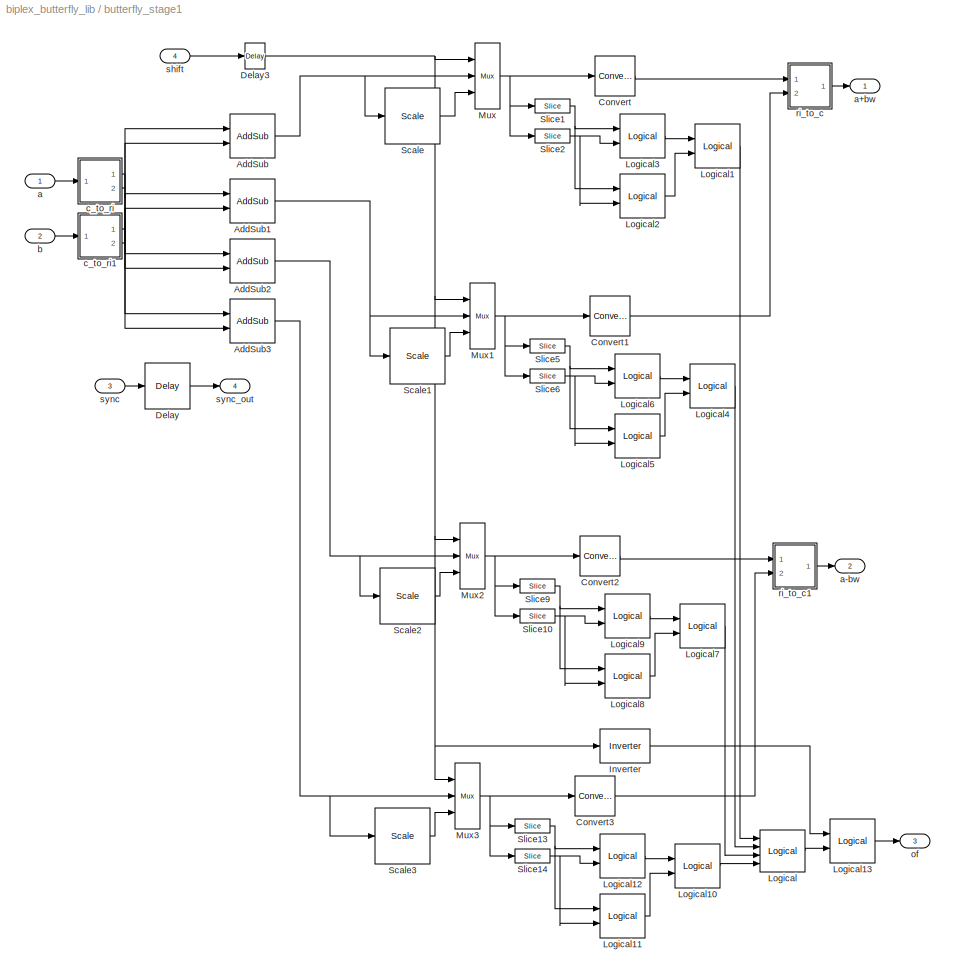
BLOCK [SubSystem] butterfly_stage1
  MaskCallbackString = ||
  MaskEnableString = on,on,on
  MaskIconFrame = on
  MaskIconOpaque = on
  MaskIconRotate = none
  MaskIconUnits = autoscale
  MaskInitialization = cursys = gcb;\ndisp(cursys);\n\n% Propagate quantization behavior\nif ~strcmp(get_param([cursys,'/Convert'], 'quantization'), quantization),\n    set_param([cursys,'/Convert'], 'quantization', quantization);\n    set_param([cursys,'/Convert1'], 'quantization', quantization);\n    set_param([cursys,'/Convert2'], 'quantization', quantization);\n    set_param([cursys,'/Convert3'], 'quantization', qua...<+20ch>
  MaskPromptString = Output Bitwidth:|Add Latency|Quantization Behavior
  MaskSelfModifiable = on
  MaskStyleString = edit,edit,popup(Truncate|Round  (unbiased: +/- Inf)|Round  (unbiased: Even Values))
  MaskTabNameString = ,,
  MaskToolTipString = on,on,on
  MaskTunableValueString = on,on,on
  MaskValueString = 18|2|Truncate
  MaskVarAliasString = ,,
  MaskVariables = BitWidth=@1;add_latency=@2;quantization=&3;
  MaskVisibilityString = on,on,on
  MinAlgLoopOccurrences = off
  Ports = [4, 4]
  RTWSystemCode = Auto
  TreatAsAtomicUnit = off
BLOCK [Reference] butterfly_stage1/AddSub  REF=xbsIndex_r3/AddSub
  Ports = [2, 1]
  SourceBlock = xbsIndex_r3/AddSub
  SourceType = Xilinx Adder/Subtractor
  arith_type = Unsigned
  bin_pt = 2
  dbl_ovrd = off
  en = off
  explicit_period = off
  gen_core = on
  latency = add_latency
  mode = Addition
  n_bits = 8
  overflow = Wrap
  period = 1
  pipeline = on
  precision = Full
  quantization = Truncate
  show_param = on
  use_carryin = off
  use_carryout = off
  use_core = on
  use_rpm = on
  xl_area = [0, 0, 0, 0, 0, 0, 0]
  xl_use_area = off
BLOCK [Reference] butterfly_stage1/AddSub1  REF=xbsIndex_r3/AddSub
  Ports = [2, 1]
  SourceBlock = xbsIndex_r3/AddSub
  SourceType = Xilinx Adder/Subtractor
  arith_type = Unsigned
  bin_pt = 2
  dbl_ovrd = off
  en = off
  explicit_period = off
  gen_core = on
  latency = add_latency
  mode = Addition
  n_bits = 8
  overflow = Wrap
  period = 1
  pipeline = on
  precision = Full
  quantization = Truncate
  show_param = on
  use_carryin = off
  use_carryout = off
  use_core = on
  use_rpm = on
  xl_area = [0, 0, 0, 0, 0, 0, 0]
  xl_use_area = off
BLOCK [Reference] butterfly_stage1/AddSub2  REF=xbsIndex_r3/AddSub
  Ports = [2, 1]
  SourceBlock = xbsIndex_r3/AddSub
  SourceType = Xilinx Adder/Subtractor
  arith_type = Unsigned
  bin_pt = 2
  dbl_ovrd = off
  en = off
  explicit_period = off
  gen_core = on
  latency = add_latency
  mode = Subtraction
  n_bits = 8
  overflow = Wrap
  period = 1
  pipeline = on
  precision = Full
  quantization = Truncate
  show_param = on
  use_carryin = off
  use_carryout = off
  use_core = on
  use_rpm = on
  xl_area = [0, 0, 0, 0, 0, 0, 0]
  xl_use_area = off
BLOCK [Reference] butterfly_stage1/AddSub3  REF=xbsIndex_r3/AddSub
  Ports = [2, 1]
  SourceBlock = xbsIndex_r3/AddSub
  SourceType = Xilinx Adder/Subtractor
  arith_type = Unsigned
  bin_pt = 2
  dbl_ovrd = off
  en = off
  explicit_period = off
  gen_core = on
  latency = add_latency
  mode = Subtraction
  n_bits = 8
  overflow = Wrap
  period = 1
  pipeline = on
  precision = Full
  quantization = Truncate
  show_param = on
  use_carryin = off
  use_carryout = off
  use_core = on
  use_rpm = on
  xl_area = [0, 0, 0, 0, 0, 0, 0]
  xl_use_area = off
BLOCK [Reference] butterfly_stage1/Convert  REF=xbsIndex_r3/Convert
  Ports = [1, 1]
  SourceBlock = xbsIndex_r3/Convert
  SourceType = Xilinx Converter Block
  arith_type = Signed  (2's comp)
  bin_pt = BitWidth-1
  dbl_ovrd = off
  explicit_period = off
  inserted_by_tool = off
  latency = add_latency
  n_bits = BitWidth
  overflow = Wrap
  period = 1
  pipeline = off
  quantization = Truncate
  show_param = off
  xl_area = [0, 0, 0, 0, 0, 0, 0]
  xl_use_area = off
BLOCK [Reference] butterfly_stage1/Convert1  REF=xbsIndex_r3/Convert
  Ports = [1, 1]
  SourceBlock = xbsIndex_r3/Convert
  SourceType = Xilinx Converter Block
  arith_type = Signed  (2's comp)
  bin_pt = BitWidth-1
  dbl_ovrd = off
  explicit_period = off
  inserted_by_tool = off
  latency = add_latency
  n_bits = BitWidth
  overflow = Wrap
  period = 1
  pipeline = off
  quantization = Truncate
  show_param = off
  xl_area = [0, 0, 0, 0, 0, 0, 0]
  xl_use_area = off
BLOCK [Reference] butterfly_stage1/Convert2  REF=xbsIndex_r3/Convert
  Ports = [1, 1]
  SourceBlock = xbsIndex_r3/Convert
  SourceType = Xilinx Converter Block
  arith_type = Signed  (2's comp)
  bin_pt = BitWidth-1
  dbl_ovrd = off
  explicit_period = off
  inserted_by_tool = off
  latency = add_latency
  n_bits = BitWidth
  overflow = Wrap
  period = 1
  pipeline = off
  quantization = Truncate
  show_param = off
  xl_area = [0, 0, 0, 0, 0, 0, 0]
  xl_use_area = off
BLOCK [Reference] butterfly_stage1/Convert3  REF=xbsIndex_r3/Convert
  Ports = [1, 1]
  SourceBlock = xbsIndex_r3/Convert
  SourceType = Xilinx Converter Block
  arith_type = Signed  (2's comp)
  bin_pt = BitWidth-1
  dbl_ovrd = off
  explicit_period = off
  inserted_by_tool = off
  latency = add_latency
  n_bits = BitWidth
  overflow = Wrap
  period = 1
  pipeline = off
  quantization = Truncate
  show_param = off
  xl_area = [0, 0, 0, 0, 0, 0, 0]
  xl_use_area = off
BLOCK [Reference] butterfly_stage1/Delay  REF=xbsIndex_r3/Delay
  Ports = [1, 1]
  SourceBlock = xbsIndex_r3/Delay
  SourceType = Xilinx Delay Block
  accept_only_valid = off
  dbl_ovrd = off
  en = off
  explicit_period = off
  init_zero = on
  latency = 2 * add_latency + 1
  period = 1
  reg_retiming = off
  show_param = off
  xl_area = [0, 0, 0, 0, 0, 0, 0]
  xl_use_area = off
BLOCK [Reference] butterfly_stage1/Delay3  REF=xbsIndex_r3/Delay
  Ports = [1, 1]
  SourceBlock = xbsIndex_r3/Delay
  SourceType = Xilinx Delay Block
  accept_only_valid = off
  dbl_ovrd = off
  en = off
  explicit_period = off
  init_zero = on
  latency = 1
  period = 1
  reg_retiming = off
  show_param = off
  xl_area = [0, 0, 0, 0, 0, 0, 0]
  xl_use_area = off
BLOCK [Reference] butterfly_stage1/Inverter  REF=xbsIndex_r3/Inverter
  Ports = [1, 1]
  SourceBlock = xbsIndex_r3/Inverter
  SourceType = Xilinx Inverter
  dbl_ovrd = off
  en = off
  explicit_period = off
  latency = 0
  period = 1
  show_param = off
  xl_area = [0, 0, 0, 0, 0, 0, 0]
  xl_use_area = off
BLOCK [Reference] butterfly_stage1/Logical  REF=xbsIndex_r3/Logical
  Ports = [4, 1]
  SourceBlock = xbsIndex_r3/Logical
  SourceType = Xilinx Logical Block
  align_bp = on
  arith_type = Unsigned
  bin_pt = 2
  dbl_ovrd = off
  en = off
  explicit_period = off
  inputs = 4
  latency = 1
  logical_function = OR
  n_bits = 8
  period = 1
  precision = Full
  show_param = off
  xl_area = [0, 0, 0, 0, 0, 0, 0]
  xl_use_area = off
BLOCK [Reference] butterfly_stage1/Logical1  REF=xbsIndex_r3/Logical
  Ports = [2, 1]
  SourceBlock = xbsIndex_r3/Logical
  SourceType = Xilinx Logical Block
  align_bp = off
  arith_type = Unsigned
  bin_pt = 2
  dbl_ovrd = off
  en = off
  explicit_period = off
  inputs = 2
  latency = 1
  logical_function = OR
  n_bits = 8
  period = 1
  precision = Full
  show_param = off
  xl_area = [0, 0, 0, 0, 0, 0, 0]
  xl_use_area = off
BLOCK [Reference] butterfly_stage1/Logical10  REF=xbsIndex_r3/Logical
  Ports = [2, 1]
  SourceBlock = xbsIndex_r3/Logical
  SourceType = Xilinx Logical Block
  align_bp = off
  arith_type = Unsigned
  bin_pt = 2
  dbl_ovrd = off
  en = off
  explicit_period = off
  inputs = 2
  latency = 1
  logical_function = OR
  n_bits = 8
  period = 1
  precision = Full
  show_param = off
  xl_area = [0, 0, 0, 0, 0, 0, 0]
  xl_use_area = off
BLOCK [Reference] butterfly_stage1/Logical11  REF=xbsIndex_r3/Logical
  Ports = [2, 1]
  SourceBlock = xbsIndex_r3/Logical
  SourceType = Xilinx Logical Block
  align_bp = off
  arith_type = Unsigned
  bin_pt = 2
  dbl_ovrd = off
  en = off
  explicit_period = off
  inputs = 2
  latency = 1
  logical_function = NOR
  n_bits = 8
  period = 1
  precision = Full
  show_param = off
  xl_area = [0, 0, 0, 0, 0, 0, 0]
  xl_use_area = off
BLOCK [Reference] butterfly_stage1/Logical12  REF=xbsIndex_r3/Logical
  Ports = [2, 1]
  SourceBlock = xbsIndex_r3/Logical
  SourceType = Xilinx Logical Block
  align_bp = off
  arith_type = Unsigned
  bin_pt = 2
  dbl_ovrd = off
  en = off
  explicit_period = off
  inputs = 2
  latency = 1
  logical_function = AND
  n_bits = 8
  period = 1
  precision = Full
  show_param = off
  xl_area = [0, 0, 0, 0, 0, 0, 0]
  xl_use_area = off
BLOCK [Reference] butterfly_stage1/Logical13  REF=xbsIndex_r3/Logical
  Ports = [2, 1]
  SourceBlock = xbsIndex_r3/Logical
  SourceType = Xilinx Logical Block
  align_bp = off
  arith_type = Unsigned
  bin_pt = 2
  dbl_ovrd = off
  en = off
  explicit_period = off
  inputs = 2
  latency = 1
  logical_function = AND
  n_bits = 8
  period = 1
  precision = Full
  show_param = off
  xl_area = [0, 0, 0, 0, 0, 0, 0]
  xl_use_area = off
BLOCK [Reference] butterfly_stage1/Logical2  REF=xbsIndex_r3/Logical
  Ports = [2, 1]
  SourceBlock = xbsIndex_r3/Logical
  SourceType = Xilinx Logical Block
  align_bp = off
  arith_type = Unsigned
  bin_pt = 2
  dbl_ovrd = off
  en = off
  explicit_period = off
  inputs = 2
  latency = 1
  logical_function = NOR
  n_bits = 8
  period = 1
  precision = Full
  show_param = off
  xl_area = [0, 0, 0, 0, 0, 0, 0]
  xl_use_area = off
BLOCK [Reference] butterfly_stage1/Logical3  REF=xbsIndex_r3/Logical
  Ports = [2, 1]
  SourceBlock = xbsIndex_r3/Logical
  SourceType = Xilinx Logical Block
  align_bp = off
  arith_type = Unsigned
  bin_pt = 2
  dbl_ovrd = off
  en = off
  explicit_period = off
  inputs = 2
  latency = 1
  logical_function = AND
  n_bits = 8
  period = 1
  precision = Full
  show_param = off
  xl_area = [0, 0, 0, 0, 0, 0, 0]
  xl_use_area = off
BLOCK [Reference] butterfly_stage1/Logical4  REF=xbsIndex_r3/Logical
  Ports = [2, 1]
  SourceBlock = xbsIndex_r3/Logical
  SourceType = Xilinx Logical Block
  align_bp = off
  arith_type = Unsigned
  bin_pt = 2
  dbl_ovrd = off
  en = off
  explicit_period = off
  inputs = 2
  latency = 1
  logical_function = OR
  n_bits = 8
  period = 1
  precision = Full
  show_param = off
  xl_area = [0, 0, 0, 0, 0, 0, 0]
  xl_use_area = off
BLOCK [Reference] butterfly_stage1/Logical5  REF=xbsIndex_r3/Logical
  Ports = [2, 1]
  SourceBlock = xbsIndex_r3/Logical
  SourceType = Xilinx Logical Block
  align_bp = off
  arith_type = Unsigned
  bin_pt = 2
  dbl_ovrd = off
  en = off
  explicit_period = off
  inputs = 2
  latency = 1
  logical_function = NOR
  n_bits = 8
  period = 1
  precision = Full
  show_param = off
  xl_area = [0, 0, 0, 0, 0, 0, 0]
  xl_use_area = off
BLOCK [Reference] butterfly_stage1/Logical6  REF=xbsIndex_r3/Logical
  Ports = [2, 1]
  SourceBlock = xbsIndex_r3/Logical
  SourceType = Xilinx Logical Block
  align_bp = off
  arith_type = Unsigned
  bin_pt = 2
  dbl_ovrd = off
  en = off
  explicit_period = off
  inputs = 2
  latency = 1
  logical_function = AND
  n_bits = 8
  period = 1
  precision = Full
  show_param = off
  xl_area = [0, 0, 0, 0, 0, 0, 0]
  xl_use_area = off
BLOCK [Reference] butterfly_stage1/Logical7  REF=xbsIndex_r3/Logical
  Ports = [2, 1]
  SourceBlock = xbsIndex_r3/Logical
  SourceType = Xilinx Logical Block
  align_bp = off
  arith_type = Unsigned
  bin_pt = 2
  dbl_ovrd = off
  en = off
  explicit_period = off
  inputs = 2
  latency = 1
  logical_function = OR
  n_bits = 8
  period = 1
  precision = Full
  show_param = off
  xl_area = [0, 0, 0, 0, 0, 0, 0]
  xl_use_area = off
BLOCK [Reference] butterfly_stage1/Logical8  REF=xbsIndex_r3/Logical
  Ports = [2, 1]
  SourceBlock = xbsIndex_r3/Logical
  SourceType = Xilinx Logical Block
  align_bp = off
  arith_type = Unsigned
  bin_pt = 2
  dbl_ovrd = off
  en = off
  explicit_period = off
  inputs = 2
  latency = 1
  logical_function = NOR
  n_bits = 8
  period = 1
  precision = Full
  show_param = off
  xl_area = [0, 0, 0, 0, 0, 0, 0]
  xl_use_area = off
BLOCK [Reference] butterfly_stage1/Logical9  REF=xbsIndex_r3/Logical
  Ports = [2, 1]
  SourceBlock = xbsIndex_r3/Logical
  SourceType = Xilinx Logical Block
  align_bp = off
  arith_type = Unsigned
  bin_pt = 2
  dbl_ovrd = off
  en = off
  explicit_period = off
  inputs = 2
  latency = 1
  logical_function = AND
  n_bits = 8
  period = 1
  precision = Full
  show_param = off
  xl_area = [0, 0, 0, 0, 0, 0, 0]
  xl_use_area = off
BLOCK [Reference] butterfly_stage1/Mux  REF=xbsIndex_r3/Mux
  Ports = [3, 1]
  SourceBlock = xbsIndex_r3/Mux
  SourceType = Xilinx Multiplexer Block
  arith_type = Signed  (2's comp)
  bin_pt = 2
  dbl_ovrd = off
  en = off
  explicit_period = off
  gen_core = off
  inputs = 2
  latency = 1
  mux_type = off
  n_bits = 8
  overflow = Wrap
  period = 1
  precision = Full
  quantization = Truncate
  show_param = off
  use_rpm = off
  xl_area = [0, 0, 0, 0, 0, 0, 0]
  xl_use_area = off
BLOCK [Reference] butterfly_stage1/Mux1  REF=xbsIndex_r3/Mux
  Ports = [3, 1]
  SourceBlock = xbsIndex_r3/Mux
  SourceType = Xilinx Multiplexer Block
  arith_type = Signed  (2's comp)
  bin_pt = 2
  dbl_ovrd = off
  en = off
  explicit_period = off
  gen_core = off
  inputs = 2
  latency = 1
  mux_type = off
  n_bits = 8
  overflow = Wrap
  period = 1
  precision = Full
  quantization = Truncate
  show_param = off
  use_rpm = off
  xl_area = [0, 0, 0, 0, 0, 0, 0]
  xl_use_area = off
BLOCK [Reference] butterfly_stage1/Mux2  REF=xbsIndex_r3/Mux
  Ports = [3, 1]
  SourceBlock = xbsIndex_r3/Mux
  SourceType = Xilinx Multiplexer Block
  arith_type = Signed  (2's comp)
  bin_pt = 2
  dbl_ovrd = off
  en = off
  explicit_period = off
  gen_core = off
  inputs = 2
  latency = 1
  mux_type = off
  n_bits = 8
  overflow = Wrap
  period = 1
  precision = Full
  quantization = Truncate
  show_param = off
  use_rpm = off
  xl_area = [0, 0, 0, 0, 0, 0, 0]
  xl_use_area = off
BLOCK [Reference] butterfly_stage1/Mux3  REF=xbsIndex_r3/Mux
  Ports = [3, 1]
  SourceBlock = xbsIndex_r3/Mux
  SourceType = Xilinx Multiplexer Block
  arith_type = Signed  (2's comp)
  bin_pt = 2
  dbl_ovrd = off
  en = off
  explicit_period = off
  gen_core = off
  inputs = 2
  latency = 1
  mux_type = off
  n_bits = 8
  overflow = Wrap
  period = 1
  precision = Full
  quantization = Truncate
  show_param = off
  use_rpm = off
  xl_area = [0, 0, 0, 0, 0, 0, 0]
  xl_use_area = off
BLOCK [Reference] butterfly_stage1/Scale  REF=xbsIndex_r3/Scale
  Ports = [1, 1]
  SourceBlock = xbsIndex_r3/Scale
  SourceType = Xilinx Scaling Block
  dbl_ovrd = off
  explicit_period = off
  period = 1
  scale_factor = -1
BLOCK [Reference] butterfly_stage1/Scale1  REF=xbsIndex_r3/Scale
  Ports = [1, 1]
  SourceBlock = xbsIndex_r3/Scale
  SourceType = Xilinx Scaling Block
  dbl_ovrd = off
  explicit_period = off
  period = 1
  scale_factor = -1
BLOCK [Reference] butterfly_stage1/Scale2  REF=xbsIndex_r3/Scale
  Ports = [1, 1]
  SourceBlock = xbsIndex_r3/Scale
  SourceType = Xilinx Scaling Block
  dbl_ovrd = off
  explicit_period = off
  period = 1
  scale_factor = -1
BLOCK [Reference] butterfly_stage1/Scale3  REF=xbsIndex_r3/Scale
  Ports = [1, 1]
  SourceBlock = xbsIndex_r3/Scale
  SourceType = Xilinx Scaling Block
  dbl_ovrd = off
  explicit_period = off
  period = 1
  scale_factor = -1
BLOCK [Reference] butterfly_stage1/Slice1  REF=xbsIndex_r3/Slice
  Ports = [1, 1]
  SourceBlock = xbsIndex_r3/Slice
  SourceType = Xilinx Slice Block
  base0 = LSB of Input
  base1 = MSB of Input
  bit0 = 0
  bit1 = 0
  boolean_output = on
  dbl_ovrd = off
  explicit_period = off
  mode = Upper Bit Location + Width
  nbits = 1
  period = 1
BLOCK [Reference] butterfly_stage1/Slice10  REF=xbsIndex_r3/Slice
  Ports = [1, 1]
  SourceBlock = xbsIndex_r3/Slice
  SourceType = Xilinx Slice Block
  base0 = LSB of Input
  base1 = MSB of Input
  bit0 = 0
  bit1 = -1
  boolean_output = on
  dbl_ovrd = off
  explicit_period = off
  mode = Upper Bit Location + Width
  nbits = 1
  period = 1
BLOCK [Reference] butterfly_stage1/Slice13  REF=xbsIndex_r3/Slice
  Ports = [1, 1]
  SourceBlock = xbsIndex_r3/Slice
  SourceType = Xilinx Slice Block
  base0 = LSB of Input
  base1 = MSB of Input
  bit0 = 0
  bit1 = 0
  boolean_output = on
  dbl_ovrd = off
  explicit_period = off
  mode = Upper Bit Location + Width
  nbits = 1
  period = 1
BLOCK [Reference] butterfly_stage1/Slice14  REF=xbsIndex_r3/Slice
  Ports = [1, 1]
  SourceBlock = xbsIndex_r3/Slice
  SourceType = Xilinx Slice Block
  base0 = LSB of Input
  base1 = MSB of Input
  bit0 = 0
  bit1 = -1
  boolean_output = on
  dbl_ovrd = off
  explicit_period = off
  mode = Upper Bit Location + Width
  nbits = 1
  period = 1
BLOCK [Reference] butterfly_stage1/Slice2  REF=xbsIndex_r3/Slice
  Ports = [1, 1]
  SourceBlock = xbsIndex_r3/Slice
  SourceType = Xilinx Slice Block
  base0 = LSB of Input
  base1 = MSB of Input
  bit0 = 0
  bit1 = -1
  boolean_output = on
  dbl_ovrd = off
  explicit_period = off
  mode = Upper Bit Location + Width
  nbits = 1
  period = 1
BLOCK [Reference] butterfly_stage1/Slice5  REF=xbsIndex_r3/Slice
  Ports = [1, 1]
  SourceBlock = xbsIndex_r3/Slice
  SourceType = Xilinx Slice Block
  base0 = LSB of Input
  base1 = MSB of Input
  bit0 = 0
  bit1 = 0
  boolean_output = on
  dbl_ovrd = off
  explicit_period = off
  mode = Upper Bit Location + Width
  nbits = 1
  period = 1
BLOCK [Reference] butterfly_stage1/Slice6  REF=xbsIndex_r3/Slice
  Ports = [1, 1]
  SourceBlock = xbsIndex_r3/Slice
  SourceType = Xilinx Slice Block
  base0 = LSB of Input
  base1 = MSB of Input
  bit0 = 0
  bit1 = -1
  boolean_output = on
  dbl_ovrd = off
  explicit_period = off
  mode = Upper Bit Location + Width
  nbits = 1
  period = 1
BLOCK [Reference] butterfly_stage1/Slice9  REF=xbsIndex_r3/Slice
  Ports = [1, 1]
  SourceBlock = xbsIndex_r3/Slice
  SourceType = Xilinx Slice Block
  base0 = LSB of Input
  base1 = MSB of Input
  bit0 = 0
  bit1 = 0
  boolean_output = on
  dbl_ovrd = off
  explicit_period = off
  mode = Upper Bit Location + Width
  nbits = 1
  period = 1
BLOCK [Inport] butterfly_stage1/a
  IconDisplay = Port number
  LatchInput = off
  Port = 1
BLOCK [Outport] butterfly_stage1/a+bw
  BusOutputAsStruct = off
  IconDisplay = Port number
BLOCK [Outport] butterfly_stage1/a-bw
  BusOutputAsStruct = off
  IconDisplay = Port number
  Port = 2
BLOCK [Inport] butterfly_stage1/b
  IconDisplay = Port number
  LatchInput = off
  Port = 2
BLOCK [SubSystem] butterfly_stage1/c_to_ri
  MinAlgLoopOccurrences = off
  Ports = [1, 2]
  RTWSystemCode = Auto
  TreatAsAtomicUnit = off
BLOCK [Reference] butterfly_stage1/c_to_ri/Reinterpret  REF=xbsIndex_r3/Reinterpret
  Ports = [1, 1]
  SourceBlock = xbsIndex_r3/Reinterpret
  SourceType = Xilinx Type Reinterpreting Block
  arith_type = Signed  (2's comp)
  bin_pt = BitWidth - 1
  force_arith_type = on
  force_bin_pt = on
  force_valid = on
BLOCK [Reference] butterfly_stage1/c_to_ri/Reinterpret1  REF=xbsIndex_r3/Reinterpret
  Ports = [1, 1]
  SourceBlock = xbsIndex_r3/Reinterpret
  SourceType = Xilinx Type Reinterpreting Block
  arith_type = Signed  (2's comp)
  bin_pt = BitWidth - 1
  force_arith_type = on
  force_bin_pt = on
  force_valid = on
BLOCK [Reference] butterfly_stage1/c_to_ri/Slice  REF=xbsIndex_r3/Slice
  Ports = [1, 1]
  SourceBlock = xbsIndex_r3/Slice
  SourceType = Xilinx Slice Block
  base0 = LSB of Input
  base1 = MSB of Input
  bit0 = 0
  bit1 = 0
  boolean_output = off
  dbl_ovrd = off
  explicit_period = off
  mode = Upper Bit Location + Width
  nbits = BitWidth
  period = 1
BLOCK [Reference] butterfly_stage1/c_to_ri/Slice1  REF=xbsIndex_r3/Slice
  Ports = [1, 1]
  SourceBlock = xbsIndex_r3/Slice
  SourceType = Xilinx Slice Block
  base0 = LSB of Input
  base1 = MSB of Input
  bit0 = 0
  bit1 = 0
  boolean_output = off
  dbl_ovrd = off
  explicit_period = off
  mode = Lower Bit Location + Width
  nbits = BitWidth
  period = 1
BLOCK [Inport] butterfly_stage1/c_to_ri/c
  IconDisplay = Port number
  LatchInput = off
  Port = 1
BLOCK [Outport] butterfly_stage1/c_to_ri/im
  BusOutputAsStruct = off
  IconDisplay = Port number
  Port = 2
BLOCK [Outport] butterfly_stage1/c_to_ri/re
  BusOutputAsStruct = off
  IconDisplay = Port number
BLOCK [SubSystem] butterfly_stage1/c_to_ri1
  MinAlgLoopOccurrences = off
  Ports = [1, 2]
  RTWSystemCode = Auto
  TreatAsAtomicUnit = off
BLOCK [Reference] butterfly_stage1/c_to_ri1/Reinterpret  REF=xbsIndex_r3/Reinterpret
  Ports = [1, 1]
  SourceBlock = xbsIndex_r3/Reinterpret
  SourceType = Xilinx Type Reinterpreting Block
  arith_type = Signed  (2's comp)
  bin_pt = BitWidth - 1
  force_arith_type = on
  force_bin_pt = on
  force_valid = on
BLOCK [Reference] butterfly_stage1/c_to_ri1/Reinterpret1  REF=xbsIndex_r3/Reinterpret
  Ports = [1, 1]
  SourceBlock = xbsIndex_r3/Reinterpret
  SourceType = Xilinx Type Reinterpreting Block
  arith_type = Signed  (2's comp)
  bin_pt = BitWidth - 1
  force_arith_type = on
  force_bin_pt = on
  force_valid = on
BLOCK [Reference] butterfly_stage1/c_to_ri1/Slice  REF=xbsIndex_r3/Slice
  Ports = [1, 1]
  SourceBlock = xbsIndex_r3/Slice
  SourceType = Xilinx Slice Block
  base0 = LSB of Input
  base1 = MSB of Input
  bit0 = 0
  bit1 = 0
  boolean_output = off
  dbl_ovrd = off
  explicit_period = off
  mode = Upper Bit Location + Width
  nbits = BitWidth
  period = 1
BLOCK [Reference] butterfly_stage1/c_to_ri1/Slice1  REF=xbsIndex_r3/Slice
  Ports = [1, 1]
  SourceBlock = xbsIndex_r3/Slice
  SourceType = Xilinx Slice Block
  base0 = LSB of Input
  base1 = MSB of Input
  bit0 = 0
  bit1 = 0
  boolean_output = off
  dbl_ovrd = off
  explicit_period = off
  mode = Lower Bit Location + Width
  nbits = BitWidth
  period = 1
BLOCK [Inport] butterfly_stage1/c_to_ri1/c
  IconDisplay = Port number
  LatchInput = off
  Port = 1
BLOCK [Outport] butterfly_stage1/c_to_ri1/im
  BusOutputAsStruct = off
  IconDisplay = Port number
  Port = 2
BLOCK [Outport] butterfly_stage1/c_to_ri1/re
  BusOutputAsStruct = off
  IconDisplay = Port number
BLOCK [Outport] butterfly_stage1/of
  BusOutputAsStruct = off
  IconDisplay = Port number
  Port = 3
BLOCK [SubSystem] butterfly_stage1/ri_to_c
  MinAlgLoopOccurrences = off
  Ports = [2, 1]
  RTWSystemCode = Auto
  TreatAsAtomicUnit = off
BLOCK [Reference] butterfly_stage1/ri_to_c/Concat  REF=xbsIndex_r3/Concat
  Ports = [2, 1]
  SourceBlock = xbsIndex_r3/Concat
  SourceType = Xilinx Bus Concatenator
  dbl_ovrd = off
  explicit_period = off
  num_inputs = 2
  period = 1
BLOCK [Reference] butterfly_stage1/ri_to_c/Reinterpret  REF=xbsIndex_r3/Reinterpret
  Ports = [1, 1]
  SourceBlock = xbsIndex_r3/Reinterpret
  SourceType = Xilinx Type Reinterpreting Block
  arith_type = Unsigned
  bin_pt = 0
  force_arith_type = on
  force_bin_pt = on
  force_valid = on
BLOCK [Reference] butterfly_stage1/ri_to_c/Reinterpret1  REF=xbsIndex_r3/Reinterpret
  Ports = [1, 1]
  SourceBlock = xbsIndex_r3/Reinterpret
  SourceType = Xilinx Type Reinterpreting Block
  arith_type = Unsigned
  bin_pt = 0
  force_arith_type = on
  force_bin_pt = on
  force_valid = on
BLOCK [Outport] butterfly_stage1/ri_to_c/c
  BusOutputAsStruct = off
  IconDisplay = Port number
BLOCK [Inport] butterfly_stage1/ri_to_c/im
  IconDisplay = Port number
  LatchInput = off
  Port = 2
BLOCK [Inport] butterfly_stage1/ri_to_c/re
  IconDisplay = Port number
  LatchInput = off
  Port = 1
BLOCK [SubSystem] butterfly_stage1/ri_to_c1
  MinAlgLoopOccurrences = off
  Ports = [2, 1]
  RTWSystemCode = Auto
  TreatAsAtomicUnit = off
BLOCK [Reference] butterfly_stage1/ri_to_c1/Concat  REF=xbsIndex_r3/Concat
  Ports = [2, 1]
  SourceBlock = xbsIndex_r3/Concat
  SourceType = Xilinx Bus Concatenator
  dbl_ovrd = off
  explicit_period = off
  num_inputs = 2
  period = 1
BLOCK [Reference] butterfly_stage1/ri_to_c1/Reinterpret  REF=xbsIndex_r3/Reinterpret
  Ports = [1, 1]
  SourceBlock = xbsIndex_r3/Reinterpret
  SourceType = Xilinx Type Reinterpreting Block
  arith_type = Unsigned
  bin_pt = 0
  force_arith_type = on
  force_bin_pt = on
  force_valid = on
BLOCK [Reference] butterfly_stage1/ri_to_c1/Reinterpret1  REF=xbsIndex_r3/Reinterpret
  Ports = [1, 1]
  SourceBlock = xbsIndex_r3/Reinterpret
  SourceType = Xilinx Type Reinterpreting Block
  arith_type = Unsigned
  bin_pt = 0
  force_arith_type = on
  force_bin_pt = on
  force_valid = on
BLOCK [Outport] butterfly_stage1/ri_to_c1/c
  BusOutputAsStruct = off
  IconDisplay = Port number
BLOCK [Inport] butterfly_stage1/ri_to_c1/im
  IconDisplay = Port number
  LatchInput = off
  Port = 2
BLOCK [Inport] butterfly_stage1/ri_to_c1/re
  IconDisplay = Port number
  LatchInput = off
  Port = 1
BLOCK [Inport] butterfly_stage1/shift
  IconDisplay = Port number
  LatchInput = off
  Port = 4
BLOCK [Inport] butterfly_stage1/sync
  IconDisplay = Port number
  LatchInput = off
  Port = 3
BLOCK [Outport] butterfly_stage1/sync_out
  BusOutputAsStruct = off
  IconDisplay = Port number
  Port = 4
BLOCK [SubSystem] butterfly_stage2
  MaskCallbackString = |||
  MaskEnableString = on,on,on,on
  MaskIconFrame = on
  MaskIconOpaque = on
  MaskIconRotate = none
  MaskIconUnits = autoscale
  MaskInitialization = cursys = gcb;\ndisp(cursys);\n\n% Propagate quantization behavior\nif ~strcmp(get_param([cursys,'/Convert'], 'quantization'), quantization),\n    set_param([cursys,'/Convert'], 'quantization', quantization);\n    set_param([cursys,'/Convert1'], 'quantization', quantization);\n    set_param([cursys,'/Convert2'], 'quantization', quantization);\n    set_param([cursys,'/Convert3'], 'quantization', qua...<+20ch>
  MaskPromptString = Size of FFT: (2^?)|Output Bitwidth:|Add Latency|Quantization Behavior
  MaskSelfModifiable = on
  MaskStyleString = edit,edit,edit,popup(Truncate|Round  (unbiased: +/- Inf)|Round  (unbiased: Even Values))
  MaskTabNameString = ,,,
  MaskToolTipString = on,on,on,on
  MaskTunableValueString = on,on,on,on
  MaskValueString = 5|18|2|Truncate
  MaskVarAliasString = ,,,
  MaskVariables = FFTSize=@1;BitWidth=@2;add_latency=@3;quantization=&4;
  MaskVisibilityString = on,on,on,on
  MinAlgLoopOccurrences = off
  Ports = [4, 4]
  RTWSystemCode = Auto
  TreatAsAtomicUnit = off
BLOCK [Reference] butterfly_stage2/AddSub  REF=xbsIndex_r3/AddSub
  Ports = [2, 1]
  SourceBlock = xbsIndex_r3/AddSub
  SourceType = Xilinx Adder/Subtractor
  arith_type = Unsigned
  bin_pt = 2
  dbl_ovrd = off
  en = off
  explicit_period = off
  gen_core = on
  latency = add_latency
  mode = Addition
  n_bits = 8
  overflow = Wrap
  period = 1
  pipeline = on
  precision = Full
  quantization = Truncate
  show_param = on
  use_carryin = off
  use_carryout = off
  use_core = on
  use_rpm = on
  xl_area = [0, 0, 0, 0, 0, 0, 0]
  xl_use_area = off
BLOCK [Reference] butterfly_stage2/AddSub1  REF=xbsIndex_r3/AddSub
  Ports = [2, 1]
  SourceBlock = xbsIndex_r3/AddSub
  SourceType = Xilinx Adder/Subtractor
  arith_type = Unsigned
  bin_pt = 2
  dbl_ovrd = off
  en = off
  explicit_period = off
  gen_core = on
  latency = add_latency
  mode = Addition
  n_bits = 8
  overflow = Wrap
  period = 1
  pipeline = on
  precision = Full
  quantization = Truncate
  show_param = on
  use_carryin = off
  use_carryout = off
  use_core = on
  use_rpm = on
  xl_area = [0, 0, 0, 0, 0, 0, 0]
  xl_use_area = off
BLOCK [Reference] butterfly_stage2/AddSub2  REF=xbsIndex_r3/AddSub
  Ports = [2, 1]
  SourceBlock = xbsIndex_r3/AddSub
  SourceType = Xilinx Adder/Subtractor
  arith_type = Unsigned
  bin_pt = 2
  dbl_ovrd = off
  en = off
  explicit_period = off
  gen_core = on
  latency = add_latency
  mode = Subtraction
  n_bits = 8
  overflow = Wrap
  period = 1
  pipeline = on
  precision = Full
  quantization = Truncate
  show_param = on
  use_carryin = off
  use_carryout = off
  use_core = on
  use_rpm = on
  xl_area = [0, 0, 0, 0, 0, 0, 0]
  xl_use_area = off
BLOCK [Reference] butterfly_stage2/AddSub3  REF=xbsIndex_r3/AddSub
  Ports = [2, 1]
  SourceBlock = xbsIndex_r3/AddSub
  SourceType = Xilinx Adder/Subtractor
  arith_type = Unsigned
  bin_pt = 2
  dbl_ovrd = off
  en = off
  explicit_period = off
  gen_core = on
  latency = add_latency
  mode = Subtraction
  n_bits = 8
  overflow = Wrap
  period = 1
  pipeline = on
  precision = Full
  quantization = Truncate
  show_param = on
  use_carryin = off
  use_carryout = off
  use_core = on
  use_rpm = on
  xl_area = [0, 0, 0, 0, 0, 0, 0]
  xl_use_area = off
BLOCK [Reference] butterfly_stage2/Convert  REF=xbsIndex_r3/Convert
  Ports = [1, 1]
  SourceBlock = xbsIndex_r3/Convert
  SourceType = Xilinx Converter Block
  arith_type = Signed  (2's comp)
  bin_pt = BitWidth-1
  dbl_ovrd = off
  explicit_period = off
  inserted_by_tool = off
  latency = add_latency
  n_bits = BitWidth
  overflow = Wrap
  period = 1
  pipeline = off
  quantization = Truncate
  show_param = off
  xl_area = [0, 0, 0, 0, 0, 0, 0]
  xl_use_area = off
BLOCK [Reference] butterfly_stage2/Convert1  REF=xbsIndex_r3/Convert
  Ports = [1, 1]
  SourceBlock = xbsIndex_r3/Convert
  SourceType = Xilinx Converter Block
  arith_type = Signed  (2's comp)
  bin_pt = BitWidth-1
  dbl_ovrd = off
  explicit_period = off
  inserted_by_tool = off
  latency = add_latency
  n_bits = BitWidth
  overflow = Wrap
  period = 1
  pipeline = off
  quantization = Truncate
  show_param = off
  xl_area = [0, 0, 0, 0, 0, 0, 0]
  xl_use_area = off
BLOCK [Reference] butterfly_stage2/Convert2  REF=xbsIndex_r3/Convert
  Ports = [1, 1]
  SourceBlock = xbsIndex_r3/Convert
  SourceType = Xilinx Converter Block
  arith_type = Signed  (2's comp)
  bin_pt = BitWidth-1
  dbl_ovrd = off
  explicit_period = off
  inserted_by_tool = off
  latency = add_latency
  n_bits = BitWidth
  overflow = Wrap
  period = 1
  pipeline = off
  quantization = Truncate
  show_param = off
  xl_area = [0, 0, 0, 0, 0, 0, 0]
  xl_use_area = off
BLOCK [Reference] butterfly_stage2/Convert3  REF=xbsIndex_r3/Convert
  Ports = [1, 1]
  SourceBlock = xbsIndex_r3/Convert
  SourceType = Xilinx Converter Block
  arith_type = Signed  (2's comp)
  bin_pt = BitWidth-1
  dbl_ovrd = off
  explicit_period = off
  inserted_by_tool = off
  latency = add_latency
  n_bits = BitWidth
  overflow = Wrap
  period = 1
  pipeline = off
  quantization = Truncate
  show_param = off
  xl_area = [0, 0, 0, 0, 0, 0, 0]
  xl_use_area = off
BLOCK [Reference] butterfly_stage2/Delay  REF=xbsIndex_r3/Delay
  Ports = [1, 1]
  SourceBlock = xbsIndex_r3/Delay
  SourceType = Xilinx Delay Block
  accept_only_valid = off
  dbl_ovrd = off
  en = off
  explicit_period = off
  init_zero = on
  latency = 2 * add_latency + 1
  period = 1
  reg_retiming = off
  show_param = off
  xl_area = [0, 0, 0, 0, 0, 0, 0]
  xl_use_area = off
BLOCK [Reference] butterfly_stage2/Delay3  REF=xbsIndex_r3/Delay
  Ports = [1, 1]
  SourceBlock = xbsIndex_r3/Delay
  SourceType = Xilinx Delay Block
  accept_only_valid = off
  dbl_ovrd = off
  en = off
  explicit_period = off
  init_zero = on
  latency = 1
  period = 1
  reg_retiming = off
  show_param = off
  xl_area = [0, 0, 0, 0, 0, 0, 0]
  xl_use_area = off
BLOCK [Reference] butterfly_stage2/Inverter  REF=xbsIndex_r3/Inverter
  Ports = [1, 1]
  SourceBlock = xbsIndex_r3/Inverter
  SourceType = Xilinx Inverter
  dbl_ovrd = off
  en = off
  explicit_period = off
  latency = 0
  period = 1
  show_param = off
  xl_area = [0, 0, 0, 0, 0, 0, 0]
  xl_use_area = off
BLOCK [Reference] butterfly_stage2/Logical  REF=xbsIndex_r3/Logical
  Ports = [4, 1]
  SourceBlock = xbsIndex_r3/Logical
  SourceType = Xilinx Logical Block
  align_bp = on
  arith_type = Unsigned
  bin_pt = 2
  dbl_ovrd = off
  en = off
  explicit_period = off
  inputs = 4
  latency = 1
  logical_function = OR
  n_bits = 8
  period = 1
  precision = Full
  show_param = off
  xl_area = [0, 0, 0, 0, 0, 0, 0]
  xl_use_area = off
BLOCK [Reference] butterfly_stage2/Logical1  REF=xbsIndex_r3/Logical
  Ports = [2, 1]
  SourceBlock = xbsIndex_r3/Logical
  SourceType = Xilinx Logical Block
  align_bp = off
  arith_type = Unsigned
  bin_pt = 2
  dbl_ovrd = off
  en = off
  explicit_period = off
  inputs = 2
  latency = 1
  logical_function = OR
  n_bits = 8
  period = 1
  precision = Full
  show_param = off
  xl_area = [0, 0, 0, 0, 0, 0, 0]
  xl_use_area = off
BLOCK [Reference] butterfly_stage2/Logical10  REF=xbsIndex_r3/Logical
  Ports = [2, 1]
  SourceBlock = xbsIndex_r3/Logical
  SourceType = Xilinx Logical Block
  align_bp = off
  arith_type = Unsigned
  bin_pt = 2
  dbl_ovrd = off
  en = off
  explicit_period = off
  inputs = 2
  latency = 1
  logical_function = OR
  n_bits = 8
  period = 1
  precision = Full
  show_param = off
  xl_area = [0, 0, 0, 0, 0, 0, 0]
  xl_use_area = off
BLOCK [Reference] butterfly_stage2/Logical11  REF=xbsIndex_r3/Logical
  Ports = [2, 1]
  SourceBlock = xbsIndex_r3/Logical
  SourceType = Xilinx Logical Block
  align_bp = off
  arith_type = Unsigned
  bin_pt = 2
  dbl_ovrd = off
  en = off
  explicit_period = off
  inputs = 2
  latency = 1
  logical_function = NOR
  n_bits = 8
  period = 1
  precision = Full
  show_param = off
  xl_area = [0, 0, 0, 0, 0, 0, 0]
  xl_use_area = off
BLOCK [Reference] butterfly_stage2/Logical12  REF=xbsIndex_r3/Logical
  Ports = [2, 1]
  SourceBlock = xbsIndex_r3/Logical
  SourceType = Xilinx Logical Block
  align_bp = off
  arith_type = Unsigned
  bin_pt = 2
  dbl_ovrd = off
  en = off
  explicit_period = off
  inputs = 2
  latency = 1
  logical_function = AND
  n_bits = 8
  period = 1
  precision = Full
  show_param = off
  xl_area = [0, 0, 0, 0, 0, 0, 0]
  xl_use_area = off
BLOCK [Reference] butterfly_stage2/Logical13  REF=xbsIndex_r3/Logical
  Ports = [2, 1]
  SourceBlock = xbsIndex_r3/Logical
  SourceType = Xilinx Logical Block
  align_bp = off
  arith_type = Unsigned
  bin_pt = 2
  dbl_ovrd = off
  en = off
  explicit_period = off
  inputs = 2
  latency = 1
  logical_function = AND
  n_bits = 8
  period = 1
  precision = Full
  show_param = off
  xl_area = [0, 0, 0, 0, 0, 0, 0]
  xl_use_area = off
BLOCK [Reference] butterfly_stage2/Logical2  REF=xbsIndex_r3/Logical
  Ports = [2, 1]
  SourceBlock = xbsIndex_r3/Logical
  SourceType = Xilinx Logical Block
  align_bp = off
  arith_type = Unsigned
  bin_pt = 2
  dbl_ovrd = off
  en = off
  explicit_period = off
  inputs = 2
  latency = 1
  logical_function = NOR
  n_bits = 8
  period = 1
  precision = Full
  show_param = off
  xl_area = [0, 0, 0, 0, 0, 0, 0]
  xl_use_area = off
BLOCK [Reference] butterfly_stage2/Logical3  REF=xbsIndex_r3/Logical
  Ports = [2, 1]
  SourceBlock = xbsIndex_r3/Logical
  SourceType = Xilinx Logical Block
  align_bp = off
  arith_type = Unsigned
  bin_pt = 2
  dbl_ovrd = off
  en = off
  explicit_period = off
  inputs = 2
  latency = 1
  logical_function = AND
  n_bits = 8
  period = 1
  precision = Full
  show_param = off
  xl_area = [0, 0, 0, 0, 0, 0, 0]
  xl_use_area = off
BLOCK [Reference] butterfly_stage2/Logical4  REF=xbsIndex_r3/Logical
  Ports = [2, 1]
  SourceBlock = xbsIndex_r3/Logical
  SourceType = Xilinx Logical Block
  align_bp = off
  arith_type = Unsigned
  bin_pt = 2
  dbl_ovrd = off
  en = off
  explicit_period = off
  inputs = 2
  latency = 1
  logical_function = OR
  n_bits = 8
  period = 1
  precision = Full
  show_param = off
  xl_area = [0, 0, 0, 0, 0, 0, 0]
  xl_use_area = off
BLOCK [Reference] butterfly_stage2/Logical5  REF=xbsIndex_r3/Logical
  Ports = [2, 1]
  SourceBlock = xbsIndex_r3/Logical
  SourceType = Xilinx Logical Block
  align_bp = off
  arith_type = Unsigned
  bin_pt = 2
  dbl_ovrd = off
  en = off
  explicit_period = off
  inputs = 2
  latency = 1
  logical_function = NOR
  n_bits = 8
  period = 1
  precision = Full
  show_param = off
  xl_area = [0, 0, 0, 0, 0, 0, 0]
  xl_use_area = off
BLOCK [Reference] butterfly_stage2/Logical6  REF=xbsIndex_r3/Logical
  Ports = [2, 1]
  SourceBlock = xbsIndex_r3/Logical
  SourceType = Xilinx Logical Block
  align_bp = off
  arith_type = Unsigned
  bin_pt = 2
  dbl_ovrd = off
  en = off
  explicit_period = off
  inputs = 2
  latency = 1
  logical_function = AND
  n_bits = 8
  period = 1
  precision = Full
  show_param = off
  xl_area = [0, 0, 0, 0, 0, 0, 0]
  xl_use_area = off
BLOCK [Reference] butterfly_stage2/Logical7  REF=xbsIndex_r3/Logical
  Ports = [2, 1]
  SourceBlock = xbsIndex_r3/Logical
  SourceType = Xilinx Logical Block
  align_bp = off
  arith_type = Unsigned
  bin_pt = 2
  dbl_ovrd = off
  en = off
  explicit_period = off
  inputs = 2
  latency = 1
  logical_function = OR
  n_bits = 8
  period = 1
  precision = Full
  show_param = off
  xl_area = [0, 0, 0, 0, 0, 0, 0]
  xl_use_area = off
BLOCK [Reference] butterfly_stage2/Logical8  REF=xbsIndex_r3/Logical
  Ports = [2, 1]
  SourceBlock = xbsIndex_r3/Logical
  SourceType = Xilinx Logical Block
  align_bp = off
  arith_type = Unsigned
  bin_pt = 2
  dbl_ovrd = off
  en = off
  explicit_period = off
  inputs = 2
  latency = 1
  logical_function = NOR
  n_bits = 8
  period = 1
  precision = Full
  show_param = off
  xl_area = [0, 0, 0, 0, 0, 0, 0]
  xl_use_area = off
BLOCK [Reference] butterfly_stage2/Logical9  REF=xbsIndex_r3/Logical
  Ports = [2, 1]
  SourceBlock = xbsIndex_r3/Logical
  SourceType = Xilinx Logical Block
  align_bp = off
  arith_type = Unsigned
  bin_pt = 2
  dbl_ovrd = off
  en = off
  explicit_period = off
  inputs = 2
  latency = 1
  logical_function = AND
  n_bits = 8
  period = 1
  precision = Full
  show_param = off
  xl_area = [0, 0, 0, 0, 0, 0, 0]
  xl_use_area = off
BLOCK [Reference] butterfly_stage2/Mux  REF=xbsIndex_r3/Mux
  Ports = [3, 1]
  SourceBlock = xbsIndex_r3/Mux
  SourceType = Xilinx Multiplexer Block
  arith_type = Signed  (2's comp)
  bin_pt = 2
  dbl_ovrd = off
  en = off
  explicit_period = off
  gen_core = off
  inputs = 2
  latency = 1
  mux_type = off
  n_bits = 8
  overflow = Wrap
  period = 1
  precision = Full
  quantization = Truncate
  show_param = off
  use_rpm = off
  xl_area = [0, 0, 0, 0, 0, 0, 0]
  xl_use_area = off
BLOCK [Reference] butterfly_stage2/Mux1  REF=xbsIndex_r3/Mux
  Ports = [3, 1]
  SourceBlock = xbsIndex_r3/Mux
  SourceType = Xilinx Multiplexer Block
  arith_type = Signed  (2's comp)
  bin_pt = 2
  dbl_ovrd = off
  en = off
  explicit_period = off
  gen_core = off
  inputs = 2
  latency = 1
  mux_type = off
  n_bits = 8
  overflow = Wrap
  period = 1
  precision = Full
  quantization = Truncate
  show_param = off
  use_rpm = off
  xl_area = [0, 0, 0, 0, 0, 0, 0]
  xl_use_area = off
BLOCK [Reference] butterfly_stage2/Mux2  REF=xbsIndex_r3/Mux
  Ports = [3, 1]
  SourceBlock = xbsIndex_r3/Mux
  SourceType = Xilinx Multiplexer Block
  arith_type = Signed  (2's comp)
  bin_pt = 2
  dbl_ovrd = off
  en = off
  explicit_period = off
  gen_core = off
  inputs = 2
  latency = 1
  mux_type = off
  n_bits = 8
  overflow = Wrap
  period = 1
  precision = Full
  quantization = Truncate
  show_param = off
  use_rpm = off
  xl_area = [0, 0, 0, 0, 0, 0, 0]
  xl_use_area = off
BLOCK [Reference] butterfly_stage2/Mux3  REF=xbsIndex_r3/Mux
  Ports = [3, 1]
  SourceBlock = xbsIndex_r3/Mux
  SourceType = Xilinx Multiplexer Block
  arith_type = Signed  (2's comp)
  bin_pt = 2
  dbl_ovrd = off
  en = off
  explicit_period = off
  gen_core = off
  inputs = 2
  latency = 1
  mux_type = off
  n_bits = 8
  overflow = Wrap
  period = 1
  precision = Full
  quantization = Truncate
  show_param = off
  use_rpm = off
  xl_area = [0, 0, 0, 0, 0, 0, 0]
  xl_use_area = off
BLOCK [Reference] butterfly_stage2/Scale  REF=xbsIndex_r3/Scale
  Ports = [1, 1]
  SourceBlock = xbsIndex_r3/Scale
  SourceType = Xilinx Scaling Block
  dbl_ovrd = off
  explicit_period = off
  period = 1
  scale_factor = -1
BLOCK [Reference] butterfly_stage2/Scale1  REF=xbsIndex_r3/Scale
  Ports = [1, 1]
  SourceBlock = xbsIndex_r3/Scale
  SourceType = Xilinx Scaling Block
  dbl_ovrd = off
  explicit_period = off
  period = 1
  scale_factor = -1
BLOCK [Reference] butterfly_stage2/Scale2  REF=xbsIndex_r3/Scale
  Ports = [1, 1]
  SourceBlock = xbsIndex_r3/Scale
  SourceType = Xilinx Scaling Block
  dbl_ovrd = off
  explicit_period = off
  period = 1
  scale_factor = -1
BLOCK [Reference] butterfly_stage2/Scale3  REF=xbsIndex_r3/Scale
  Ports = [1, 1]
  SourceBlock = xbsIndex_r3/Scale
  SourceType = Xilinx Scaling Block
  dbl_ovrd = off
  explicit_period = off
  period = 1
  scale_factor = -1
BLOCK [Reference] butterfly_stage2/Slice1  REF=xbsIndex_r3/Slice
  Ports = [1, 1]
  SourceBlock = xbsIndex_r3/Slice
  SourceType = Xilinx Slice Block
  base0 = LSB of Input
  base1 = MSB of Input
  bit0 = 0
  bit1 = 0
  boolean_output = on
  dbl_ovrd = off
  explicit_period = off
  mode = Upper Bit Location + Width
  nbits = 1
  period = 1
BLOCK [Reference] butterfly_stage2/Slice10  REF=xbsIndex_r3/Slice
  Ports = [1, 1]
  SourceBlock = xbsIndex_r3/Slice
  SourceType = Xilinx Slice Block
  base0 = LSB of Input
  base1 = MSB of Input
  bit0 = 0
  bit1 = -1
  boolean_output = on
  dbl_ovrd = off
  explicit_period = off
  mode = Upper Bit Location + Width
  nbits = 1
  period = 1
BLOCK [Reference] butterfly_stage2/Slice13  REF=xbsIndex_r3/Slice
  Ports = [1, 1]
  SourceBlock = xbsIndex_r3/Slice
  SourceType = Xilinx Slice Block
  base0 = LSB of Input
  base1 = MSB of Input
  bit0 = 0
  bit1 = 0
  boolean_output = on
  dbl_ovrd = off
  explicit_period = off
  mode = Upper Bit Location + Width
  nbits = 1
  period = 1
BLOCK [Reference] butterfly_stage2/Slice14  REF=xbsIndex_r3/Slice
  Ports = [1, 1]
  SourceBlock = xbsIndex_r3/Slice
  SourceType = Xilinx Slice Block
  base0 = LSB of Input
  base1 = MSB of Input
  bit0 = 0
  bit1 = -1
  boolean_output = on
  dbl_ovrd = off
  explicit_period = off
  mode = Upper Bit Location + Width
  nbits = 1
  period = 1
BLOCK [Reference] butterfly_stage2/Slice2  REF=xbsIndex_r3/Slice
  Ports = [1, 1]
  SourceBlock = xbsIndex_r3/Slice
  SourceType = Xilinx Slice Block
  base0 = LSB of Input
  base1 = MSB of Input
  bit0 = 0
  bit1 = -1
  boolean_output = on
  dbl_ovrd = off
  explicit_period = off
  mode = Upper Bit Location + Width
  nbits = 1
  period = 1
BLOCK [Reference] butterfly_stage2/Slice5  REF=xbsIndex_r3/Slice
  Ports = [1, 1]
  SourceBlock = xbsIndex_r3/Slice
  SourceType = Xilinx Slice Block
  base0 = LSB of Input
  base1 = MSB of Input
  bit0 = 0
  bit1 = 0
  boolean_output = on
  dbl_ovrd = off
  explicit_period = off
  mode = Upper Bit Location + Width
  nbits = 1
  period = 1
BLOCK [Reference] butterfly_stage2/Slice6  REF=xbsIndex_r3/Slice
  Ports = [1, 1]
  SourceBlock = xbsIndex_r3/Slice
  SourceType = Xilinx Slice Block
  base0 = LSB of Input
  base1 = MSB of Input
  bit0 = 0
  bit1 = -1
  boolean_output = on
  dbl_ovrd = off
  explicit_period = off
  mode = Upper Bit Location + Width
  nbits = 1
  period = 1
BLOCK [Reference] butterfly_stage2/Slice9  REF=xbsIndex_r3/Slice
  Ports = [1, 1]
  SourceBlock = xbsIndex_r3/Slice
  SourceType = Xilinx Slice Block
  base0 = LSB of Input
  base1 = MSB of Input
  bit0 = 0
  bit1 = 0
  boolean_output = on
  dbl_ovrd = off
  explicit_period = off
  mode = Upper Bit Location + Width
  nbits = 1
  period = 1
BLOCK [Inport] butterfly_stage2/a
  IconDisplay = Port number
  LatchInput = off
  Port = 1
BLOCK [Outport] butterfly_stage2/a+bw
  BusOutputAsStruct = off
  IconDisplay = Port number
BLOCK [Outport] butterfly_stage2/a-bw
  BusOutputAsStruct = off
  IconDisplay = Port number
  Port = 2
BLOCK [Inport] butterfly_stage2/b
  IconDisplay = Port number
  LatchInput = off
  Port = 2
BLOCK [Outport] butterfly_stage2/of
  BusOutputAsStruct = off
  IconDisplay = Port number
  Port = 3
BLOCK [SubSystem] butterfly_stage2/ri_to_c
  MaskEnableString = off
  MaskIconFrame = on
  MaskIconOpaque = on
  MaskIconRotate = none
  MaskIconUnits = autoscale
  MaskPromptString = Mask Parameter 1:
  MaskSelfModifiable = on
  MaskStyleString = edit
  MaskToolTipString = on
  MaskTunableValueString = on
  MaskValueString = 0
  MaskVariables = test=@1;
  MaskVisibilityString = off
  MinAlgLoopOccurrences = off
  Ports = [2, 1]
  RTWSystemCode = Auto
  TreatAsAtomicUnit = off
BLOCK [Reference] butterfly_stage2/ri_to_c/Concat  REF=xbsIndex_r3/Concat
  Ports = [2, 1]
  SourceBlock = xbsIndex_r3/Concat
  SourceType = Xilinx Bus Concatenator
  dbl_ovrd = off
  explicit_period = off
  num_inputs = 2
  period = 1
BLOCK [Reference] butterfly_stage2/ri_to_c/Reinterpret  REF=xbsIndex_r3/Reinterpret
  Ports = [1, 1]
  SourceBlock = xbsIndex_r3/Reinterpret
  SourceType = Xilinx Type Reinterpreting Block
  arith_type = Unsigned
  bin_pt = 0
  force_arith_type = on
  force_bin_pt = on
  force_valid = on
BLOCK [Reference] butterfly_stage2/ri_to_c/Reinterpret1  REF=xbsIndex_r3/Reinterpret
  Ports = [1, 1]
  SourceBlock = xbsIndex_r3/Reinterpret
  SourceType = Xilinx Type Reinterpreting Block
  arith_type = Unsigned
  bin_pt = 0
  force_arith_type = on
  force_bin_pt = on
  force_valid = on
BLOCK [Outport] butterfly_stage2/ri_to_c/c
  BusOutputAsStruct = off
  IconDisplay = Port number
BLOCK [Inport] butterfly_stage2/ri_to_c/im
  IconDisplay = Port number
  LatchInput = off
  Port = 2
BLOCK [Inport] butterfly_stage2/ri_to_c/re
  IconDisplay = Port number
  LatchInput = off
  Port = 1
BLOCK [SubSystem] butterfly_stage2/ri_to_c1
  MaskEnableString = off
  MaskIconFrame = on
  MaskIconOpaque = on
  MaskIconRotate = none
  MaskIconUnits = autoscale
  MaskPromptString = Mask Parameter 1:
  MaskSelfModifiable = on
  MaskStyleString = edit
  MaskToolTipString = on
  MaskTunableValueString = on
  MaskValueString = 0
  MaskVariables = test=@1;
  MaskVisibilityString = off
  MinAlgLoopOccurrences = off
  Ports = [2, 1]
  RTWSystemCode = Auto
  TreatAsAtomicUnit = off
BLOCK [Reference] butterfly_stage2/ri_to_c1/Concat  REF=xbsIndex_r3/Concat
  Ports = [2, 1]
  SourceBlock = xbsIndex_r3/Concat
  SourceType = Xilinx Bus Concatenator
  dbl_ovrd = off
  explicit_period = off
  num_inputs = 2
  period = 1
BLOCK [Reference] butterfly_stage2/ri_to_c1/Reinterpret  REF=xbsIndex_r3/Reinterpret
  Ports = [1, 1]
  SourceBlock = xbsIndex_r3/Reinterpret
  SourceType = Xilinx Type Reinterpreting Block
  arith_type = Unsigned
  bin_pt = 0
  force_arith_type = on
  force_bin_pt = on
  force_valid = on
BLOCK [Reference] butterfly_stage2/ri_to_c1/Reinterpret1  REF=xbsIndex_r3/Reinterpret
  Ports = [1, 1]
  SourceBlock = xbsIndex_r3/Reinterpret
  SourceType = Xilinx Type Reinterpreting Block
  arith_type = Unsigned
  bin_pt = 0
  force_arith_type = on
  force_bin_pt = on
  force_valid = on
BLOCK [Outport] butterfly_stage2/ri_to_c1/c
  BusOutputAsStruct = off
  IconDisplay = Port number
BLOCK [Inport] butterfly_stage2/ri_to_c1/im
  IconDisplay = Port number
  LatchInput = off
  Port = 2
BLOCK [Inport] butterfly_stage2/ri_to_c1/re
  IconDisplay = Port number
  LatchInput = off
  Port = 1
BLOCK [Inport] butterfly_stage2/shift
  IconDisplay = Port number
  LatchInput = off
  Port = 4
BLOCK [Inport] butterfly_stage2/sync
  IconDisplay = Port number
  LatchInput = off
  Port = 3
BLOCK [Outport] butterfly_stage2/sync_out
  BusOutputAsStruct = off
  IconDisplay = Port number
  Port = 4
BLOCK [SubSystem] butterfly_stage2/twiddle_stage_2
  MinAlgLoopOccurrences = off
  Ports = [3, 5]
  RTWSystemCode = Auto
  TreatAsAtomicUnit = off
BLOCK [Reference] butterfly_stage2/twiddle_stage_2/Counter  REF=xbsIndex_r3/Counter
  Ports = [1, 1]
  SourceBlock = xbsIndex_r3/Counter
  SourceType = Xilinx Counter Block
  arith_type = Unsigned
  bin_pt = 0
  cnt_by_val = 1
  cnt_to = Inf
  cnt_type = Free Running
  dbl_ovrd = off
  en = off
  explicit_period = off
  gen_core = off
  load_pin = off
  n_bits = FFTSize - 1
  operation = Up
  period = 1
  rst = on
  show_param = off
  start_count = 0
  use_rpm = on
  xl_area = [0, 0, 0, 0, 0, 0, 0]
  xl_use_area = off
BLOCK [Reference] butterfly_stage2/twiddle_stage_2/Delay  REF=xbsIndex_r3/Delay
  Ports = [1, 1]
  SourceBlock = xbsIndex_r3/Delay
  SourceType = Xilinx Delay Block
  accept_only_valid = off
  dbl_ovrd = off
  en = off
  explicit_period = off
  init_zero = on
  latency = 1
  period = 1
  reg_retiming = off
  show_param = off
  xl_area = [0, 0, 0, 0, 0, 0, 0]
  xl_use_area = off
BLOCK [Reference] butterfly_stage2/twiddle_stage_2/Delay2  REF=xbsIndex_r3/Delay
  Ports = [1, 1]
  SourceBlock = xbsIndex_r3/Delay
  SourceType = Xilinx Delay Block
  accept_only_valid = off
  dbl_ovrd = off
  en = off
  explicit_period = off
  init_zero = on
  latency = 1
  period = 1
  reg_retiming = off
  show_param = off
  xl_area = [0, 0, 0, 0, 0, 0, 0]
  xl_use_area = off
BLOCK [Reference] butterfly_stage2/twiddle_stage_2/Mux  REF=xbsIndex_r3/Mux
  Ports = [3, 1]
  SourceBlock = xbsIndex_r3/Mux
  SourceType = Xilinx Multiplexer Block
  arith_type = Signed  (2's comp)
  bin_pt = 2
  dbl_ovrd = off
  en = off
  explicit_period = off
  gen_core = off
  inputs = 2
  latency = 1
  mux_type = off
  n_bits = 8
  overflow = Wrap
  period = 1
  precision = Full
  quantization = Truncate
  show_param = off
  use_rpm = off
  xl_area = [0, 0, 0, 0, 0, 0, 0]
  xl_use_area = off
BLOCK [Reference] butterfly_stage2/twiddle_stage_2/Mux1  REF=xbsIndex_r3/Mux
  Ports = [3, 1]
  SourceBlock = xbsIndex_r3/Mux
  SourceType = Xilinx Multiplexer Block
  arith_type = Signed  (2's comp)
  bin_pt = 2
  dbl_ovrd = off
  en = off
  explicit_period = off
  gen_core = off
  inputs = 2
  latency = 1
  mux_type = off
  n_bits = 8
  overflow = Wrap
  period = 1
  precision = Full
  quantization = Truncate
  show_param = off
  use_rpm = off
  xl_area = [0, 0, 0, 0, 0, 0, 0]
  xl_use_area = off
BLOCK [Reference] butterfly_stage2/twiddle_stage_2/Negate1  REF=xbsIndex_r3/Negate
  Ports = [1, 1]
  SourceBlock = xbsIndex_r3/Negate
  SourceType = Xilinx Negate Block
  arith_type = Signed  (2's comp)
  bin_pt = BitWidth-1
  dbl_ovrd = off
  en = off
  explicit_period = off
  gen_core = off
  latency = 0
  n_bits = BitWidth
  overflow = Wrap
  period = 1
  precision = User Defined
  quantization = Truncate
  show_param = off
  use_core = on
  use_rpm = on
  xl_area = [0, 0, 0, 0, 0, 0, 0]
  xl_use_area = off
BLOCK [Reference] butterfly_stage2/twiddle_stage_2/Slice1  REF=xbsIndex_r3/Slice
  Ports = [1, 1]
  SourceBlock = xbsIndex_r3/Slice
  SourceType = Xilinx Slice Block
  base0 = LSB of Input
  base1 = MSB of Input
  bit0 = 0
  bit1 = 0
  boolean_output = off
  dbl_ovrd = off
  explicit_period = off
  mode = Upper Bit Location + Width
  nbits = 1
  period = 1
BLOCK [Inport] butterfly_stage2/twiddle_stage_2/a
  IconDisplay = Port number
  LatchInput = off
  Port = 1
BLOCK [Outport] butterfly_stage2/twiddle_stage_2/a_im
  BusOutputAsStruct = off
  IconDisplay = Port number
  Port = 2
BLOCK [Outport] butterfly_stage2/twiddle_stage_2/a_re
  BusOutputAsStruct = off
  IconDisplay = Port number
BLOCK [Inport] butterfly_stage2/twiddle_stage_2/b
  IconDisplay = Port number
  LatchInput = off
  Port = 2
BLOCK [Outport] butterfly_stage2/twiddle_stage_2/bw_im
  BusOutputAsStruct = off
  IconDisplay = Port number
  Port = 4
BLOCK [Outport] butterfly_stage2/twiddle_stage_2/bw_re
  BusOutputAsStruct = off
  IconDisplay = Port number
  Port = 3
BLOCK [SubSystem] butterfly_stage2/twiddle_stage_2/c_to_ri
  MinAlgLoopOccurrences = off
  Ports = [1, 2]
  RTWSystemCode = Auto
  TreatAsAtomicUnit = off
BLOCK [Reference] butterfly_stage2/twiddle_stage_2/c_to_ri/Reinterpret  REF=xbsIndex_r3/Reinterpret
  Ports = [1, 1]
  SourceBlock = xbsIndex_r3/Reinterpret
  SourceType = Xilinx Type Reinterpreting Block
  arith_type = Signed  (2's comp)
  bin_pt = BitWidth - 1
  force_arith_type = on
  force_bin_pt = on
  force_valid = on
BLOCK [Reference] butterfly_stage2/twiddle_stage_2/c_to_ri/Reinterpret1  REF=xbsIndex_r3/Reinterpret
  Ports = [1, 1]
  SourceBlock = xbsIndex_r3/Reinterpret
  SourceType = Xilinx Type Reinterpreting Block
  arith_type = Signed  (2's comp)
  bin_pt = BitWidth - 1
  force_arith_type = on
  force_bin_pt = on
  force_valid = on
BLOCK [Reference] butterfly_stage2/twiddle_stage_2/c_to_ri/Slice  REF=xbsIndex_r3/Slice
  Ports = [1, 1]
  SourceBlock = xbsIndex_r3/Slice
  SourceType = Xilinx Slice Block
  base0 = LSB of Input
  base1 = MSB of Input
  bit0 = 0
  bit1 = 0
  boolean_output = off
  dbl_ovrd = off
  explicit_period = off
  mode = Upper Bit Location + Width
  nbits = BitWidth
  period = 1
BLOCK [Reference] butterfly_stage2/twiddle_stage_2/c_to_ri/Slice1  REF=xbsIndex_r3/Slice
  Ports = [1, 1]
  SourceBlock = xbsIndex_r3/Slice
  SourceType = Xilinx Slice Block
  base0 = LSB of Input
  base1 = MSB of Input
  bit0 = 0
  bit1 = 0
  boolean_output = off
  dbl_ovrd = off
  explicit_period = off
  mode = Lower Bit Location + Width
  nbits = BitWidth
  period = 1
BLOCK [Inport] butterfly_stage2/twiddle_stage_2/c_to_ri/c
  IconDisplay = Port number
  LatchInput = off
  Port = 1
BLOCK [Outport] butterfly_stage2/twiddle_stage_2/c_to_ri/im
  BusOutputAsStruct = off
  IconDisplay = Port number
  Port = 2
BLOCK [Outport] butterfly_stage2/twiddle_stage_2/c_to_ri/re
  BusOutputAsStruct = off
  IconDisplay = Port number
BLOCK [SubSystem] butterfly_stage2/twiddle_stage_2/c_to_ri1
  MinAlgLoopOccurrences = off
  Ports = [1, 2]
  RTWSystemCode = Auto
  TreatAsAtomicUnit = off
BLOCK [Reference] butterfly_stage2/twiddle_stage_2/c_to_ri1/Reinterpret  REF=xbsIndex_r3/Reinterpret
  Ports = [1, 1]
  SourceBlock = xbsIndex_r3/Reinterpret
  SourceType = Xilinx Type Reinterpreting Block
  arith_type = Signed  (2's comp)
  bin_pt = BitWidth - 1
  force_arith_type = on
  force_bin_pt = on
  force_valid = on
BLOCK [Reference] butterfly_stage2/twiddle_stage_2/c_to_ri1/Reinterpret1  REF=xbsIndex_r3/Reinterpret
  Ports = [1, 1]
  SourceBlock = xbsIndex_r3/Reinterpret
  SourceType = Xilinx Type Reinterpreting Block
  arith_type = Signed  (2's comp)
  bin_pt = BitWidth - 1
  force_arith_type = on
  force_bin_pt = on
  force_valid = on
BLOCK [Reference] butterfly_stage2/twiddle_stage_2/c_to_ri1/Slice  REF=xbsIndex_r3/Slice
  Ports = [1, 1]
  SourceBlock = xbsIndex_r3/Slice
  SourceType = Xilinx Slice Block
  base0 = LSB of Input
  base1 = MSB of Input
  bit0 = 0
  bit1 = 0
  boolean_output = off
  dbl_ovrd = off
  explicit_period = off
  mode = Upper Bit Location + Width
  nbits = BitWidth
  period = 1
BLOCK [Reference] butterfly_stage2/twiddle_stage_2/c_to_ri1/Slice1  REF=xbsIndex_r3/Slice
  Ports = [1, 1]
  SourceBlock = xbsIndex_r3/Slice
  SourceType = Xilinx Slice Block
  base0 = LSB of Input
  base1 = MSB of Input
  bit0 = 0
  bit1 = 0
  boolean_output = off
  dbl_ovrd = off
  explicit_period = off
  mode = Lower Bit Location + Width
  nbits = BitWidth
  period = 1
BLOCK [Inport] butterfly_stage2/twiddle_stage_2/c_to_ri1/c
  IconDisplay = Port number
  LatchInput = off
  Port = 1
BLOCK [Outport] butterfly_stage2/twiddle_stage_2/c_to_ri1/im
  BusOutputAsStruct = off
  IconDisplay = Port number
  Port = 2
BLOCK [Outport] butterfly_stage2/twiddle_stage_2/c_to_ri1/re
  BusOutputAsStruct = off
  IconDisplay = Port number
BLOCK [Inport] butterfly_stage2/twiddle_stage_2/sync
  IconDisplay = Port number
  LatchInput = off
  Port = 3
BLOCK [Outport] butterfly_stage2/twiddle_stage_2/sync_out
  BusOutputAsStruct = off
  IconDisplay = Port number
  Port = 5
LINE biplex_butterfly/a:1 -> biplex_butterfly/butterfly_general_rom:1
LINE biplex_butterfly/b:1 -> biplex_butterfly/butterfly_general_rom:2
LINE biplex_butterfly/butterfly_general_rom:1 -> biplex_butterfly/a+bw:1
LINE biplex_butterfly/butterfly_general_rom:2 -> biplex_butterfly/a-bw:1
LINE biplex_butterfly/butterfly_general_rom:3 -> biplex_butterfly/of:1
LINE biplex_butterfly/butterfly_general_rom:4 -> biplex_butterfly/sync_out:1
LINE biplex_butterfly/shift:1 -> biplex_butterfly/butterfly_general_rom:4
LINE biplex_butterfly/sync:1 -> biplex_butterfly/butterfly_general_rom:3
NET butterfly_general_rom/AddSub1:1 -> butterfly_general_rom/Mux1:2, butterfly_general_rom/Scale1:1
NET butterfly_general_rom/AddSub2:1 -> butterfly_general_rom/Mux2:2, butterfly_general_rom/Scale2:1
NET butterfly_general_rom/AddSub3:1 -> butterfly_general_rom/Mux3:2, butterfly_general_rom/Scale3:1
NET butterfly_general_rom/AddSub:1 -> butterfly_general_rom/Mux:2, butterfly_general_rom/Scale:1
LINE butterfly_general_rom/Convert1:1 -> butterfly_general_rom/ri_to_c:2
LINE butterfly_general_rom/Convert2:1 -> butterfly_general_rom/ri_to_c1:1
LINE butterfly_general_rom/Convert3:1 -> butterfly_general_rom/ri_to_c1:2
LINE butterfly_general_rom/Convert:1 -> butterfly_general_rom/ri_to_c:1
NET butterfly_general_rom/Delay3:1 -> butterfly_general_rom/Inverter:1, butterfly_general_rom/Mux1:1, butterfly_general_rom/Mux2:1, butterfly_general_rom/Mux3:1, butterfly_general_rom/Mux:1
LINE butterfly_general_rom/Delay:1 -> butterfly_general_rom/sync_out:1
LINE butterfly_general_rom/Inverter:1 -> butterfly_general_rom/Logical13:1
LINE butterfly_general_rom/Logical10:1 -> butterfly_general_rom/Logical:4
LINE butterfly_general_rom/Logical11:1 -> butterfly_general_rom/Logical10:2
LINE butterfly_general_rom/Logical12:1 -> butterfly_general_rom/Logical10:1
LINE butterfly_general_rom/Logical13:1 -> butterfly_general_rom/of:1
LINE butterfly_general_rom/Logical1:1 -> butterfly_general_rom/Logical:1
LINE butterfly_general_rom/Logical2:1 -> butterfly_general_rom/Logical1:2
LINE butterfly_general_rom/Logical3:1 -> butterfly_general_rom/Logical1:1
LINE butterfly_general_rom/Logical4:1 -> butterfly_general_rom/Logical:2
LINE butterfly_general_rom/Logical5:1 -> butterfly_general_rom/Logical4:2
LINE butterfly_general_rom/Logical6:1 -> butterfly_general_rom/Logical4:1
LINE butterfly_general_rom/Logical7:1 -> butterfly_general_rom/Logical:3
LINE butterfly_general_rom/Logical8:1 -> butterfly_general_rom/Logical7:2
LINE butterfly_general_rom/Logical9:1 -> butterfly_general_rom/Logical7:1
LINE butterfly_general_rom/Logical:1 -> butterfly_general_rom/Logical13:2
NET butterfly_general_rom/Mux1:1 -> butterfly_general_rom/Convert1:1, butterfly_general_rom/Slice5:1, butterfly_general_rom/Slice6:1, butterfly_general_rom/Slice7:1, butterfly_general_rom/Slice8:1
NET butterfly_general_rom/Mux2:1 -> butterfly_general_rom/Convert2:1, butterfly_general_rom/Slice10:1, butterfly_general_rom/Slice11:1, butterfly_general_rom/Slice12:1, butterfly_general_rom/Slice9:1
NET butterfly_general_rom/Mux3:1 -> butterfly_general_rom/Convert3:1, butterfly_general_rom/Slice13:1, butterfly_general_rom/Slice14:1, butterfly_general_rom/Slice15:1, butterfly_general_rom/Slice16:1
NET butterfly_general_rom/Mux:1 -> butterfly_general_rom/Convert:1, butterfly_general_rom/Slice1:1, butterfly_general_rom/Slice2:1, butterfly_general_rom/Slice3:1, butterfly_general_rom/Slice4:1
LINE butterfly_general_rom/Scale1:1 -> butterfly_general_rom/Mux1:3
LINE butterfly_general_rom/Scale2:1 -> butterfly_general_rom/Mux2:3
LINE butterfly_general_rom/Scale3:1 -> butterfly_general_rom/Mux3:3
LINE butterfly_general_rom/Scale:1 -> butterfly_general_rom/Mux:3
NET butterfly_general_rom/Slice10:1 -> butterfly_general_rom/Logical8:2, butterfly_general_rom/Logical9:2
NET butterfly_general_rom/Slice11:1 -> butterfly_general_rom/Logical8:3, butterfly_general_rom/Logical9:3
NET butterfly_general_rom/Slice12:1 -> butterfly_general_rom/Logical8:4, butterfly_general_rom/Logical9:4
NET butterfly_general_rom/Slice13:1 -> butterfly_general_rom/Logical11:1, butterfly_general_rom/Logical12:1
NET butterfly_general_rom/Slice14:1 -> butterfly_general_rom/Logical11:2, butterfly_general_rom/Logical12:2
LINE butterfly_general_rom/Slice15:1 -> butterfly_general_rom/Logical12:3
NET butterfly_general_rom/Slice16:1 -> butterfly_general_rom/Logical11:3, butterfly_general_rom/Logical11:4, butterfly_general_rom/Logical12:4
NET butterfly_general_rom/Slice1:1 -> butterfly_general_rom/Logical2:1, butterfly_general_rom/Logical3:1
NET butterfly_general_rom/Slice2:1 -> butterfly_general_rom/Logical2:2, butterfly_general_rom/Logical3:2
NET butterfly_general_rom/Slice3:1 -> butterfly_general_rom/Logical2:3, butterfly_general_rom/Logical3:3
NET butterfly_general_rom/Slice4:1 -> butterfly_general_rom/Logical2:4, butterfly_general_rom/Logical3:4
NET butterfly_general_rom/Slice5:1 -> butterfly_general_rom/Logical5:1, butterfly_general_rom/Logical6:1
NET butterfly_general_rom/Slice6:1 -> butterfly_general_rom/Logical5:2, butterfly_general_rom/Logical6:2
LINE butterfly_general_rom/Slice7:1 -> butterfly_general_rom/Logical6:3
NET butterfly_general_rom/Slice8:1 -> butterfly_general_rom/Logical5:3, butterfly_general_rom/Logical5:4, butterfly_general_rom/Logical6:4
NET butterfly_general_rom/Slice9:1 -> butterfly_general_rom/Logical8:1, butterfly_general_rom/Logical9:1
LINE butterfly_general_rom/a:1 -> butterfly_general_rom/twiddle_general:1
LINE butterfly_general_rom/b:1 -> butterfly_general_rom/twiddle_general:2
LINE butterfly_general_rom/ri_to_c/Concat:1 -> butterfly_general_rom/ri_to_c/c:1
LINE butterfly_general_rom/ri_to_c/Reinterpret1:1 -> butterfly_general_rom/ri_to_c/Concat:2
LINE butterfly_general_rom/ri_to_c/Reinterpret:1 -> butterfly_general_rom/ri_to_c/Concat:1
LINE butterfly_general_rom/ri_to_c/im:1 -> butterfly_general_rom/ri_to_c/Reinterpret1:1
LINE butterfly_general_rom/ri_to_c/re:1 -> butterfly_general_rom/ri_to_c/Reinterpret:1
LINE butterfly_general_rom/ri_to_c1/Concat:1 -> butterfly_general_rom/ri_to_c1/c:1
LINE butterfly_general_rom/ri_to_c1/Reinterpret1:1 -> butterfly_general_rom/ri_to_c1/Concat:2
LINE butterfly_general_rom/ri_to_c1/Reinterpret:1 -> butterfly_general_rom/ri_to_c1/Concat:1
LINE butterfly_general_rom/ri_to_c1/im:1 -> butterfly_general_rom/ri_to_c1/Reinterpret1:1
LINE butterfly_general_rom/ri_to_c1/re:1 -> butterfly_general_rom/ri_to_c1/Reinterpret:1
LINE butterfly_general_rom/ri_to_c1:1 -> butterfly_general_rom/a-bw:1
LINE butterfly_general_rom/ri_to_c:1 -> butterfly_general_rom/a+bw:1
LINE butterfly_general_rom/shift:1 -> butterfly_general_rom/Delay3:1
LINE butterfly_general_rom/sync:1 -> butterfly_general_rom/twiddle_general:3
LINE butterfly_general_rom/twiddle_general/AddSub1:1 -> butterfly_general_rom/twiddle_general/bw_im:1
LINE butterfly_general_rom/twiddle_general/AddSub:1 -> butterfly_general_rom/twiddle_general/bw_re:1
LINE butterfly_general_rom/twiddle_general/Convert1:1 -> butterfly_general_rom/twiddle_general/AddSub1:1
LINE butterfly_general_rom/twiddle_general/Convert2:1 -> butterfly_general_rom/twiddle_general/AddSub:2
LINE butterfly_general_rom/twiddle_general/Convert3:1 -> butterfly_general_rom/twiddle_general/AddSub1:2
LINE butterfly_general_rom/twiddle_general/Convert:1 -> butterfly_general_rom/twiddle_general/AddSub:1
LINE butterfly_general_rom/twiddle_general/Delay1:1 -> butterfly_general_rom/twiddle_general/c_to_ri3:1
LINE butterfly_general_rom/twiddle_general/Delay2:1 -> butterfly_general_rom/twiddle_general/sync_out:1
LINE butterfly_general_rom/twiddle_general/Delay:1 -> butterfly_general_rom/twiddle_general/c_to_ri1:1
LINE butterfly_general_rom/twiddle_general/Mult1:1 -> butterfly_general_rom/twiddle_general/Convert1:1
LINE butterfly_general_rom/twiddle_general/Mult2:1 -> butterfly_general_rom/twiddle_general/Convert2:1
LINE butterfly_general_rom/twiddle_general/Mult3:1 -> butterfly_general_rom/twiddle_general/Convert3:1
LINE butterfly_general_rom/twiddle_general/Mult:1 -> butterfly_general_rom/twiddle_general/Convert:1
LINE butterfly_general_rom/twiddle_general/a:1 -> butterfly_general_rom/twiddle_general/Delay:1
LINE butterfly_general_rom/twiddle_general/b:1 -> butterfly_general_rom/twiddle_general/Delay1:1
LINE butterfly_general_rom/twiddle_general/br_coeff_gen/Counter:1 -> butterfly_general_rom/twiddle_general/br_coeff_gen/Slice:1
LINE butterfly_general_rom/twiddle_general/br_coeff_gen/ROM1:1 -> butterfly_general_rom/twiddle_general/br_coeff_gen/ri_to_c:2
LINE butterfly_general_rom/twiddle_general/br_coeff_gen/ROM:1 -> butterfly_general_rom/twiddle_general/br_coeff_gen/ri_to_c:1
NET butterfly_general_rom/twiddle_general/br_coeff_gen/Slice:1 -> butterfly_general_rom/twiddle_general/br_coeff_gen/ROM1:1, butterfly_general_rom/twiddle_general/br_coeff_gen/ROM:1
LINE butterfly_general_rom/twiddle_general/br_coeff_gen/ri_to_c/Concat:1 -> butterfly_general_rom/twiddle_general/br_coeff_gen/ri_to_c/c:1
LINE butterfly_general_rom/twiddle_general/br_coeff_gen/ri_to_c/Reinterpret1:1 -> butterfly_general_rom/twiddle_general/br_coeff_gen/ri_to_c/Concat:2
LINE butterfly_general_rom/twiddle_general/br_coeff_gen/ri_to_c/Reinterpret:1 -> butterfly_general_rom/twiddle_general/br_coeff_gen/ri_to_c/Concat:1
LINE butterfly_general_rom/twiddle_general/br_coeff_gen/ri_to_c/im:1 -> butterfly_general_rom/twiddle_general/br_coeff_gen/ri_to_c/Reinterpret1:1
LINE butterfly_general_rom/twiddle_general/br_coeff_gen/ri_to_c/re:1 -> butterfly_general_rom/twiddle_general/br_coeff_gen/ri_to_c/Reinterpret:1
LINE butterfly_general_rom/twiddle_general/br_coeff_gen/ri_to_c:1 -> butterfly_general_rom/twiddle_general/br_coeff_gen/w:1
LINE butterfly_general_rom/twiddle_general/br_coeff_gen/rst:1 -> butterfly_general_rom/twiddle_general/br_coeff_gen/Counter:1
LINE butterfly_general_rom/twiddle_general/br_coeff_gen:1 -> butterfly_general_rom/twiddle_general/c_to_ri2:1
LINE butterfly_general_rom/twiddle_general/c_to_ri1/Reinterpret1:1 -> butterfly_general_rom/twiddle_general/c_to_ri1/im:1
LINE butterfly_general_rom/twiddle_general/c_to_ri1/Reinterpret:1 -> butterfly_general_rom/twiddle_general/c_to_ri1/re:1
LINE butterfly_general_rom/twiddle_general/c_to_ri1/Slice1:1 -> butterfly_general_rom/twiddle_general/c_to_ri1/Reinterpret1:1
LINE butterfly_general_rom/twiddle_general/c_to_ri1/Slice:1 -> butterfly_general_rom/twiddle_general/c_to_ri1/Reinterpret:1
NET butterfly_general_rom/twiddle_general/c_to_ri1/c:1 -> butterfly_general_rom/twiddle_general/c_to_ri1/Slice1:1, butterfly_general_rom/twiddle_general/c_to_ri1/Slice:1
LINE butterfly_general_rom/twiddle_general/c_to_ri1:1 -> butterfly_general_rom/twiddle_general/a_re:1
LINE butterfly_general_rom/twiddle_general/c_to_ri1:2 -> butterfly_general_rom/twiddle_general/a_im:1
LINE butterfly_general_rom/twiddle_general/c_to_ri2/Reinterpret1:1 -> butterfly_general_rom/twiddle_general/c_to_ri2/im:1
LINE butterfly_general_rom/twiddle_general/c_to_ri2/Reinterpret:1 -> butterfly_general_rom/twiddle_general/c_to_ri2/re:1
LINE butterfly_general_rom/twiddle_general/c_to_ri2/Slice1:1 -> butterfly_general_rom/twiddle_general/c_to_ri2/Reinterpret1:1
LINE butterfly_general_rom/twiddle_general/c_to_ri2/Slice:1 -> butterfly_general_rom/twiddle_general/c_to_ri2/Reinterpret:1
NET butterfly_general_rom/twiddle_general/c_to_ri2/c:1 -> butterfly_general_rom/twiddle_general/c_to_ri2/Slice1:1, butterfly_general_rom/twiddle_general/c_to_ri2/Slice:1
NET butterfly_general_rom/twiddle_general/c_to_ri2:1 -> butterfly_general_rom/twiddle_general/Mult1:2, butterfly_general_rom/twiddle_general/Mult:2
NET butterfly_general_rom/twiddle_general/c_to_ri2:2 -> butterfly_general_rom/twiddle_general/Mult2:2, butterfly_general_rom/twiddle_general/Mult3:2
LINE butterfly_general_rom/twiddle_general/c_to_ri3/Reinterpret1:1 -> butterfly_general_rom/twiddle_general/c_to_ri3/im:1
LINE butterfly_general_rom/twiddle_general/c_to_ri3/Reinterpret:1 -> butterfly_general_rom/twiddle_general/c_to_ri3/re:1
LINE butterfly_general_rom/twiddle_general/c_to_ri3/Slice1:1 -> butterfly_general_rom/twiddle_general/c_to_ri3/Reinterpret1:1
LINE butterfly_general_rom/twiddle_general/c_to_ri3/Slice:1 -> butterfly_general_rom/twiddle_general/c_to_ri3/Reinterpret:1
NET butterfly_general_rom/twiddle_general/c_to_ri3/c:1 -> butterfly_general_rom/twiddle_general/c_to_ri3/Slice1:1, butterfly_general_rom/twiddle_general/c_to_ri3/Slice:1
NET butterfly_general_rom/twiddle_general/c_to_ri3:1 -> butterfly_general_rom/twiddle_general/Mult3:1, butterfly_general_rom/twiddle_general/Mult:1
NET butterfly_general_rom/twiddle_general/c_to_ri3:2 -> butterfly_general_rom/twiddle_general/Mult1:1, butterfly_general_rom/twiddle_general/Mult2:1
NET butterfly_general_rom/twiddle_general/sync:1 -> butterfly_general_rom/twiddle_general/Delay2:1, butterfly_general_rom/twiddle_general/br_coeff_gen:1
NET butterfly_general_rom/twiddle_general:1 -> butterfly_general_rom/AddSub2:1, butterfly_general_rom/AddSub:1
NET butterfly_general_rom/twiddle_general:2 -> butterfly_general_rom/AddSub1:1, butterfly_general_rom/AddSub3:1
NET butterfly_general_rom/twiddle_general:3 -> butterfly_general_rom/AddSub2:2, butterfly_general_rom/AddSub:2
NET butterfly_general_rom/twiddle_general:4 -> butterfly_general_rom/AddSub1:2, butterfly_general_rom/AddSub3:2
LINE butterfly_general_rom/twiddle_general:5 -> butterfly_general_rom/Delay:1
NET butterfly_stage1/AddSub1:1 -> butterfly_stage1/Mux1:2, butterfly_stage1/Scale1:1
NET butterfly_stage1/AddSub2:1 -> butterfly_stage1/Mux2:2, butterfly_stage1/Scale2:1
NET butterfly_stage1/AddSub3:1 -> butterfly_stage1/Mux3:2, butterfly_stage1/Scale3:1
NET butterfly_stage1/AddSub:1 -> butterfly_stage1/Mux:2, butterfly_stage1/Scale:1
LINE butterfly_stage1/Convert1:1 -> butterfly_stage1/ri_to_c:2
LINE butterfly_stage1/Convert2:1 -> butterfly_stage1/ri_to_c1:1
LINE butterfly_stage1/Convert3:1 -> butterfly_stage1/ri_to_c1:2
LINE butterfly_stage1/Convert:1 -> butterfly_stage1/ri_to_c:1
NET butterfly_stage1/Delay3:1 -> butterfly_stage1/Inverter:1, butterfly_stage1/Mux1:1, butterfly_stage1/Mux2:1, butterfly_stage1/Mux3:1, butterfly_stage1/Mux:1
LINE butterfly_stage1/Delay:1 -> butterfly_stage1/sync_out:1
LINE butterfly_stage1/Inverter:1 -> butterfly_stage1/Logical13:1
LINE butterfly_stage1/Logical10:1 -> butterfly_stage1/Logical:4
LINE butterfly_stage1/Logical11:1 -> butterfly_stage1/Logical10:2
LINE butterfly_stage1/Logical12:1 -> butterfly_stage1/Logical10:1
LINE butterfly_stage1/Logical13:1 -> butterfly_stage1/of:1
LINE butterfly_stage1/Logical1:1 -> butterfly_stage1/Logical:1
LINE butterfly_stage1/Logical2:1 -> butterfly_stage1/Logical1:2
LINE butterfly_stage1/Logical3:1 -> butterfly_stage1/Logical1:1
LINE butterfly_stage1/Logical4:1 -> butterfly_stage1/Logical:2
LINE butterfly_stage1/Logical5:1 -> butterfly_stage1/Logical4:2
LINE butterfly_stage1/Logical6:1 -> butterfly_stage1/Logical4:1
LINE butterfly_stage1/Logical7:1 -> butterfly_stage1/Logical:3
LINE butterfly_stage1/Logical8:1 -> butterfly_stage1/Logical7:2
LINE butterfly_stage1/Logical9:1 -> butterfly_stage1/Logical7:1
LINE butterfly_stage1/Logical:1 -> butterfly_stage1/Logical13:2
NET butterfly_stage1/Mux1:1 -> butterfly_stage1/Convert1:1, butterfly_stage1/Slice5:1, butterfly_stage1/Slice6:1
NET butterfly_stage1/Mux2:1 -> butterfly_stage1/Convert2:1, butterfly_stage1/Slice10:1, butterfly_stage1/Slice9:1
NET butterfly_stage1/Mux3:1 -> butterfly_stage1/Convert3:1, butterfly_stage1/Slice13:1, butterfly_stage1/Slice14:1
NET butterfly_stage1/Mux:1 -> butterfly_stage1/Convert:1, butterfly_stage1/Slice1:1, butterfly_stage1/Slice2:1
LINE butterfly_stage1/Scale1:1 -> butterfly_stage1/Mux1:3
LINE butterfly_stage1/Scale2:1 -> butterfly_stage1/Mux2:3
LINE butterfly_stage1/Scale3:1 -> butterfly_stage1/Mux3:3
LINE butterfly_stage1/Scale:1 -> butterfly_stage1/Mux:3
NET butterfly_stage1/Slice10:1 -> butterfly_stage1/Logical8:2, butterfly_stage1/Logical9:2
NET butterfly_stage1/Slice13:1 -> butterfly_stage1/Logical11:1, butterfly_stage1/Logical12:1
NET butterfly_stage1/Slice14:1 -> butterfly_stage1/Logical11:2, butterfly_stage1/Logical12:2
NET butterfly_stage1/Slice1:1 -> butterfly_stage1/Logical2:1, butterfly_stage1/Logical3:1
NET butterfly_stage1/Slice2:1 -> butterfly_stage1/Logical2:2, butterfly_stage1/Logical3:2
NET butterfly_stage1/Slice5:1 -> butterfly_stage1/Logical5:1, butterfly_stage1/Logical6:1
NET butterfly_stage1/Slice6:1 -> butterfly_stage1/Logical5:2, butterfly_stage1/Logical6:2
NET butterfly_stage1/Slice9:1 -> butterfly_stage1/Logical8:1, butterfly_stage1/Logical9:1
LINE butterfly_stage1/a:1 -> butterfly_stage1/c_to_ri:1
LINE butterfly_stage1/b:1 -> butterfly_stage1/c_to_ri1:1
LINE butterfly_stage1/c_to_ri/Reinterpret1:1 -> butterfly_stage1/c_to_ri/im:1
LINE butterfly_stage1/c_to_ri/Reinterpret:1 -> butterfly_stage1/c_to_ri/re:1
LINE butterfly_stage1/c_to_ri/Slice1:1 -> butterfly_stage1/c_to_ri/Reinterpret1:1
LINE butterfly_stage1/c_to_ri/Slice:1 -> butterfly_stage1/c_to_ri/Reinterpret:1
NET butterfly_stage1/c_to_ri/c:1 -> butterfly_stage1/c_to_ri/Slice1:1, butterfly_stage1/c_to_ri/Slice:1
LINE butterfly_stage1/c_to_ri1/Reinterpret1:1 -> butterfly_stage1/c_to_ri1/im:1
LINE butterfly_stage1/c_to_ri1/Reinterpret:1 -> butterfly_stage1/c_to_ri1/re:1
LINE butterfly_stage1/c_to_ri1/Slice1:1 -> butterfly_stage1/c_to_ri1/Reinterpret1:1
LINE butterfly_stage1/c_to_ri1/Slice:1 -> butterfly_stage1/c_to_ri1/Reinterpret:1
NET butterfly_stage1/c_to_ri1/c:1 -> butterfly_stage1/c_to_ri1/Slice1:1, butterfly_stage1/c_to_ri1/Slice:1
NET butterfly_stage1/c_to_ri1:1 -> butterfly_stage1/AddSub2:2, butterfly_stage1/AddSub:2
NET butterfly_stage1/c_to_ri1:2 -> butterfly_stage1/AddSub1:2, butterfly_stage1/AddSub3:2
NET butterfly_stage1/c_to_ri:1 -> butterfly_stage1/AddSub2:1, butterfly_stage1/AddSub:1
NET butterfly_stage1/c_to_ri:2 -> butterfly_stage1/AddSub1:1, butterfly_stage1/AddSub3:1
LINE butterfly_stage1/ri_to_c/Concat:1 -> butterfly_stage1/ri_to_c/c:1
LINE butterfly_stage1/ri_to_c/Reinterpret1:1 -> butterfly_stage1/ri_to_c/Concat:2
LINE butterfly_stage1/ri_to_c/Reinterpret:1 -> butterfly_stage1/ri_to_c/Concat:1
LINE butterfly_stage1/ri_to_c/im:1 -> butterfly_stage1/ri_to_c/Reinterpret1:1
LINE butterfly_stage1/ri_to_c/re:1 -> butterfly_stage1/ri_to_c/Reinterpret:1
LINE butterfly_stage1/ri_to_c1/Concat:1 -> butterfly_stage1/ri_to_c1/c:1
LINE butterfly_stage1/ri_to_c1/Reinterpret1:1 -> butterfly_stage1/ri_to_c1/Concat:2
LINE butterfly_stage1/ri_to_c1/Reinterpret:1 -> butterfly_stage1/ri_to_c1/Concat:1
LINE butterfly_stage1/ri_to_c1/im:1 -> butterfly_stage1/ri_to_c1/Reinterpret1:1
LINE butterfly_stage1/ri_to_c1/re:1 -> butterfly_stage1/ri_to_c1/Reinterpret:1
LINE butterfly_stage1/ri_to_c1:1 -> butterfly_stage1/a-bw:1
LINE butterfly_stage1/ri_to_c:1 -> butterfly_stage1/a+bw:1
LINE butterfly_stage1/shift:1 -> butterfly_stage1/Delay3:1
LINE butterfly_stage1/sync:1 -> butterfly_stage1/Delay:1
NET butterfly_stage2/AddSub1:1 -> butterfly_stage2/Mux1:2, butterfly_stage2/Scale1:1
NET butterfly_stage2/AddSub2:1 -> butterfly_stage2/Mux2:2, butterfly_stage2/Scale2:1
NET butterfly_stage2/AddSub3:1 -> butterfly_stage2/Mux3:2, butterfly_stage2/Scale3:1
NET butterfly_stage2/AddSub:1 -> butterfly_stage2/Mux:2, butterfly_stage2/Scale:1
LINE butterfly_stage2/Convert1:1 -> butterfly_stage2/ri_to_c:2
LINE butterfly_stage2/Convert2:1 -> butterfly_stage2/ri_to_c1:1
LINE butterfly_stage2/Convert3:1 -> butterfly_stage2/ri_to_c1:2
LINE butterfly_stage2/Convert:1 -> butterfly_stage2/ri_to_c:1
NET butterfly_stage2/Delay3:1 -> butterfly_stage2/Inverter:1, butterfly_stage2/Mux1:1, butterfly_stage2/Mux2:1, butterfly_stage2/Mux3:1, butterfly_stage2/Mux:1
LINE butterfly_stage2/Delay:1 -> butterfly_stage2/sync_out:1
LINE butterfly_stage2/Inverter:1 -> butterfly_stage2/Logical13:1
LINE butterfly_stage2/Logical10:1 -> butterfly_stage2/Logical:4
LINE butterfly_stage2/Logical11:1 -> butterfly_stage2/Logical10:2
LINE butterfly_stage2/Logical12:1 -> butterfly_stage2/Logical10:1
LINE butterfly_stage2/Logical13:1 -> butterfly_stage2/of:1
LINE butterfly_stage2/Logical1:1 -> butterfly_stage2/Logical:1
LINE butterfly_stage2/Logical2:1 -> butterfly_stage2/Logical1:2
LINE butterfly_stage2/Logical3:1 -> butterfly_stage2/Logical1:1
LINE butterfly_stage2/Logical4:1 -> butterfly_stage2/Logical:2
LINE butterfly_stage2/Logical5:1 -> butterfly_stage2/Logical4:2
LINE butterfly_stage2/Logical6:1 -> butterfly_stage2/Logical4:1
LINE butterfly_stage2/Logical7:1 -> butterfly_stage2/Logical:3
LINE butterfly_stage2/Logical8:1 -> butterfly_stage2/Logical7:2
LINE butterfly_stage2/Logical9:1 -> butterfly_stage2/Logical7:1
LINE butterfly_stage2/Logical:1 -> butterfly_stage2/Logical13:2
NET butterfly_stage2/Mux1:1 -> butterfly_stage2/Convert1:1, butterfly_stage2/Slice5:1, butterfly_stage2/Slice6:1
NET butterfly_stage2/Mux2:1 -> butterfly_stage2/Convert2:1, butterfly_stage2/Slice10:1, butterfly_stage2/Slice9:1
NET butterfly_stage2/Mux3:1 -> butterfly_stage2/Convert3:1, butterfly_stage2/Slice13:1, butterfly_stage2/Slice14:1
NET butterfly_stage2/Mux:1 -> butterfly_stage2/Convert:1, butterfly_stage2/Slice1:1, butterfly_stage2/Slice2:1
LINE butterfly_stage2/Scale1:1 -> butterfly_stage2/Mux1:3
LINE butterfly_stage2/Scale2:1 -> butterfly_stage2/Mux2:3
LINE butterfly_stage2/Scale3:1 -> butterfly_stage2/Mux3:3
LINE butterfly_stage2/Scale:1 -> butterfly_stage2/Mux:3
NET butterfly_stage2/Slice10:1 -> butterfly_stage2/Logical8:2, butterfly_stage2/Logical9:2
NET butterfly_stage2/Slice13:1 -> butterfly_stage2/Logical11:1, butterfly_stage2/Logical12:1
NET butterfly_stage2/Slice14:1 -> butterfly_stage2/Logical11:2, butterfly_stage2/Logical12:2
NET butterfly_stage2/Slice1:1 -> butterfly_stage2/Logical2:1, butterfly_stage2/Logical3:1
NET butterfly_stage2/Slice2:1 -> butterfly_stage2/Logical2:2, butterfly_stage2/Logical3:2
NET butterfly_stage2/Slice5:1 -> butterfly_stage2/Logical5:1, butterfly_stage2/Logical6:1
NET butterfly_stage2/Slice6:1 -> butterfly_stage2/Logical5:2, butterfly_stage2/Logical6:2
NET butterfly_stage2/Slice9:1 -> butterfly_stage2/Logical8:1, butterfly_stage2/Logical9:1
LINE butterfly_stage2/a:1 -> butterfly_stage2/twiddle_stage_2:1
LINE butterfly_stage2/b:1 -> butterfly_stage2/twiddle_stage_2:2
LINE butterfly_stage2/ri_to_c/Concat:1 -> butterfly_stage2/ri_to_c/c:1
LINE butterfly_stage2/ri_to_c/Reinterpret1:1 -> butterfly_stage2/ri_to_c/Concat:2
LINE butterfly_stage2/ri_to_c/Reinterpret:1 -> butterfly_stage2/ri_to_c/Concat:1
LINE butterfly_stage2/ri_to_c/im:1 -> butterfly_stage2/ri_to_c/Reinterpret1:1
LINE butterfly_stage2/ri_to_c/re:1 -> butterfly_stage2/ri_to_c/Reinterpret:1
LINE butterfly_stage2/ri_to_c1/Concat:1 -> butterfly_stage2/ri_to_c1/c:1
LINE butterfly_stage2/ri_to_c1/Reinterpret1:1 -> butterfly_stage2/ri_to_c1/Concat:2
LINE butterfly_stage2/ri_to_c1/Reinterpret:1 -> butterfly_stage2/ri_to_c1/Concat:1
LINE butterfly_stage2/ri_to_c1/im:1 -> butterfly_stage2/ri_to_c1/Reinterpret1:1
LINE butterfly_stage2/ri_to_c1/re:1 -> butterfly_stage2/ri_to_c1/Reinterpret:1
LINE butterfly_stage2/ri_to_c1:1 -> butterfly_stage2/a-bw:1
LINE butterfly_stage2/ri_to_c:1 -> butterfly_stage2/a+bw:1
LINE butterfly_stage2/shift:1 -> butterfly_stage2/Delay3:1
LINE butterfly_stage2/sync:1 -> butterfly_stage2/twiddle_stage_2:3
LINE butterfly_stage2/twiddle_stage_2/Counter:1 -> butterfly_stage2/twiddle_stage_2/Slice1:1
LINE butterfly_stage2/twiddle_stage_2/Delay2:1 -> butterfly_stage2/twiddle_stage_2/sync_out:1
LINE butterfly_stage2/twiddle_stage_2/Delay:1 -> butterfly_stage2/twiddle_stage_2/c_to_ri:1
LINE butterfly_stage2/twiddle_stage_2/Mux1:1 -> butterfly_stage2/twiddle_stage_2/bw_im:1
LINE butterfly_stage2/twiddle_stage_2/Mux:1 -> butterfly_stage2/twiddle_stage_2/bw_re:1
LINE butterfly_stage2/twiddle_stage_2/Negate1:1 -> butterfly_stage2/twiddle_stage_2/Mux1:3
NET butterfly_stage2/twiddle_stage_2/Slice1:1 -> butterfly_stage2/twiddle_stage_2/Mux1:1, butterfly_stage2/twiddle_stage_2/Mux:1
LINE butterfly_stage2/twiddle_stage_2/a:1 -> butterfly_stage2/twiddle_stage_2/Delay:1
LINE butterfly_stage2/twiddle_stage_2/b:1 -> butterfly_stage2/twiddle_stage_2/c_to_ri1:1
LINE butterfly_stage2/twiddle_stage_2/c_to_ri/Reinterpret1:1 -> butterfly_stage2/twiddle_stage_2/c_to_ri/im:1
LINE butterfly_stage2/twiddle_stage_2/c_to_ri/Reinterpret:1 -> butterfly_stage2/twiddle_stage_2/c_to_ri/re:1
LINE butterfly_stage2/twiddle_stage_2/c_to_ri/Slice1:1 -> butterfly_stage2/twiddle_stage_2/c_to_ri/Reinterpret1:1
LINE butterfly_stage2/twiddle_stage_2/c_to_ri/Slice:1 -> butterfly_stage2/twiddle_stage_2/c_to_ri/Reinterpret:1
NET butterfly_stage2/twiddle_stage_2/c_to_ri/c:1 -> butterfly_stage2/twiddle_stage_2/c_to_ri/Slice1:1, butterfly_stage2/twiddle_stage_2/c_to_ri/Slice:1
LINE butterfly_stage2/twiddle_stage_2/c_to_ri1/Reinterpret1:1 -> butterfly_stage2/twiddle_stage_2/c_to_ri1/im:1
LINE butterfly_stage2/twiddle_stage_2/c_to_ri1/Reinterpret:1 -> butterfly_stage2/twiddle_stage_2/c_to_ri1/re:1
LINE butterfly_stage2/twiddle_stage_2/c_to_ri1/Slice1:1 -> butterfly_stage2/twiddle_stage_2/c_to_ri1/Reinterpret1:1
LINE butterfly_stage2/twiddle_stage_2/c_to_ri1/Slice:1 -> butterfly_stage2/twiddle_stage_2/c_to_ri1/Reinterpret:1
NET butterfly_stage2/twiddle_stage_2/c_to_ri1/c:1 -> butterfly_stage2/twiddle_stage_2/c_to_ri1/Slice1:1, butterfly_stage2/twiddle_stage_2/c_to_ri1/Slice:1
NET butterfly_stage2/twiddle_stage_2/c_to_ri1:1 -> butterfly_stage2/twiddle_stage_2/Mux:2, butterfly_stage2/twiddle_stage_2/Negate1:1
NET butterfly_stage2/twiddle_stage_2/c_to_ri1:2 -> butterfly_stage2/twiddle_stage_2/Mux1:2, butterfly_stage2/twiddle_stage_2/Mux:3
LINE butterfly_stage2/twiddle_stage_2/c_to_ri:1 -> butterfly_stage2/twiddle_stage_2/a_re:1
LINE butterfly_stage2/twiddle_stage_2/c_to_ri:2 -> butterfly_stage2/twiddle_stage_2/a_im:1
NET butterfly_stage2/twiddle_stage_2/sync:1 -> butterfly_stage2/twiddle_stage_2/Counter:1, butterfly_stage2/twiddle_stage_2/Delay2:1
NET butterfly_stage2/twiddle_stage_2:1 -> butterfly_stage2/AddSub2:1, butterfly_stage2/AddSub:1
NET butterfly_stage2/twiddle_stage_2:2 -> butterfly_stage2/AddSub1:1, butterfly_stage2/AddSub3:1
NET butterfly_stage2/twiddle_stage_2:3 -> butterfly_stage2/AddSub2:2, butterfly_stage2/AddSub:2
NET butterfly_stage2/twiddle_stage_2:4 -> butterfly_stage2/AddSub1:2, butterfly_stage2/AddSub3:2
LINE butterfly_stage2/twiddle_stage_2:5 -> butterfly_stage2/Delay:1
note: NET lines group one-source signal fan-out (src -> all destinations, sorted); 1:1 wires keep LINE
